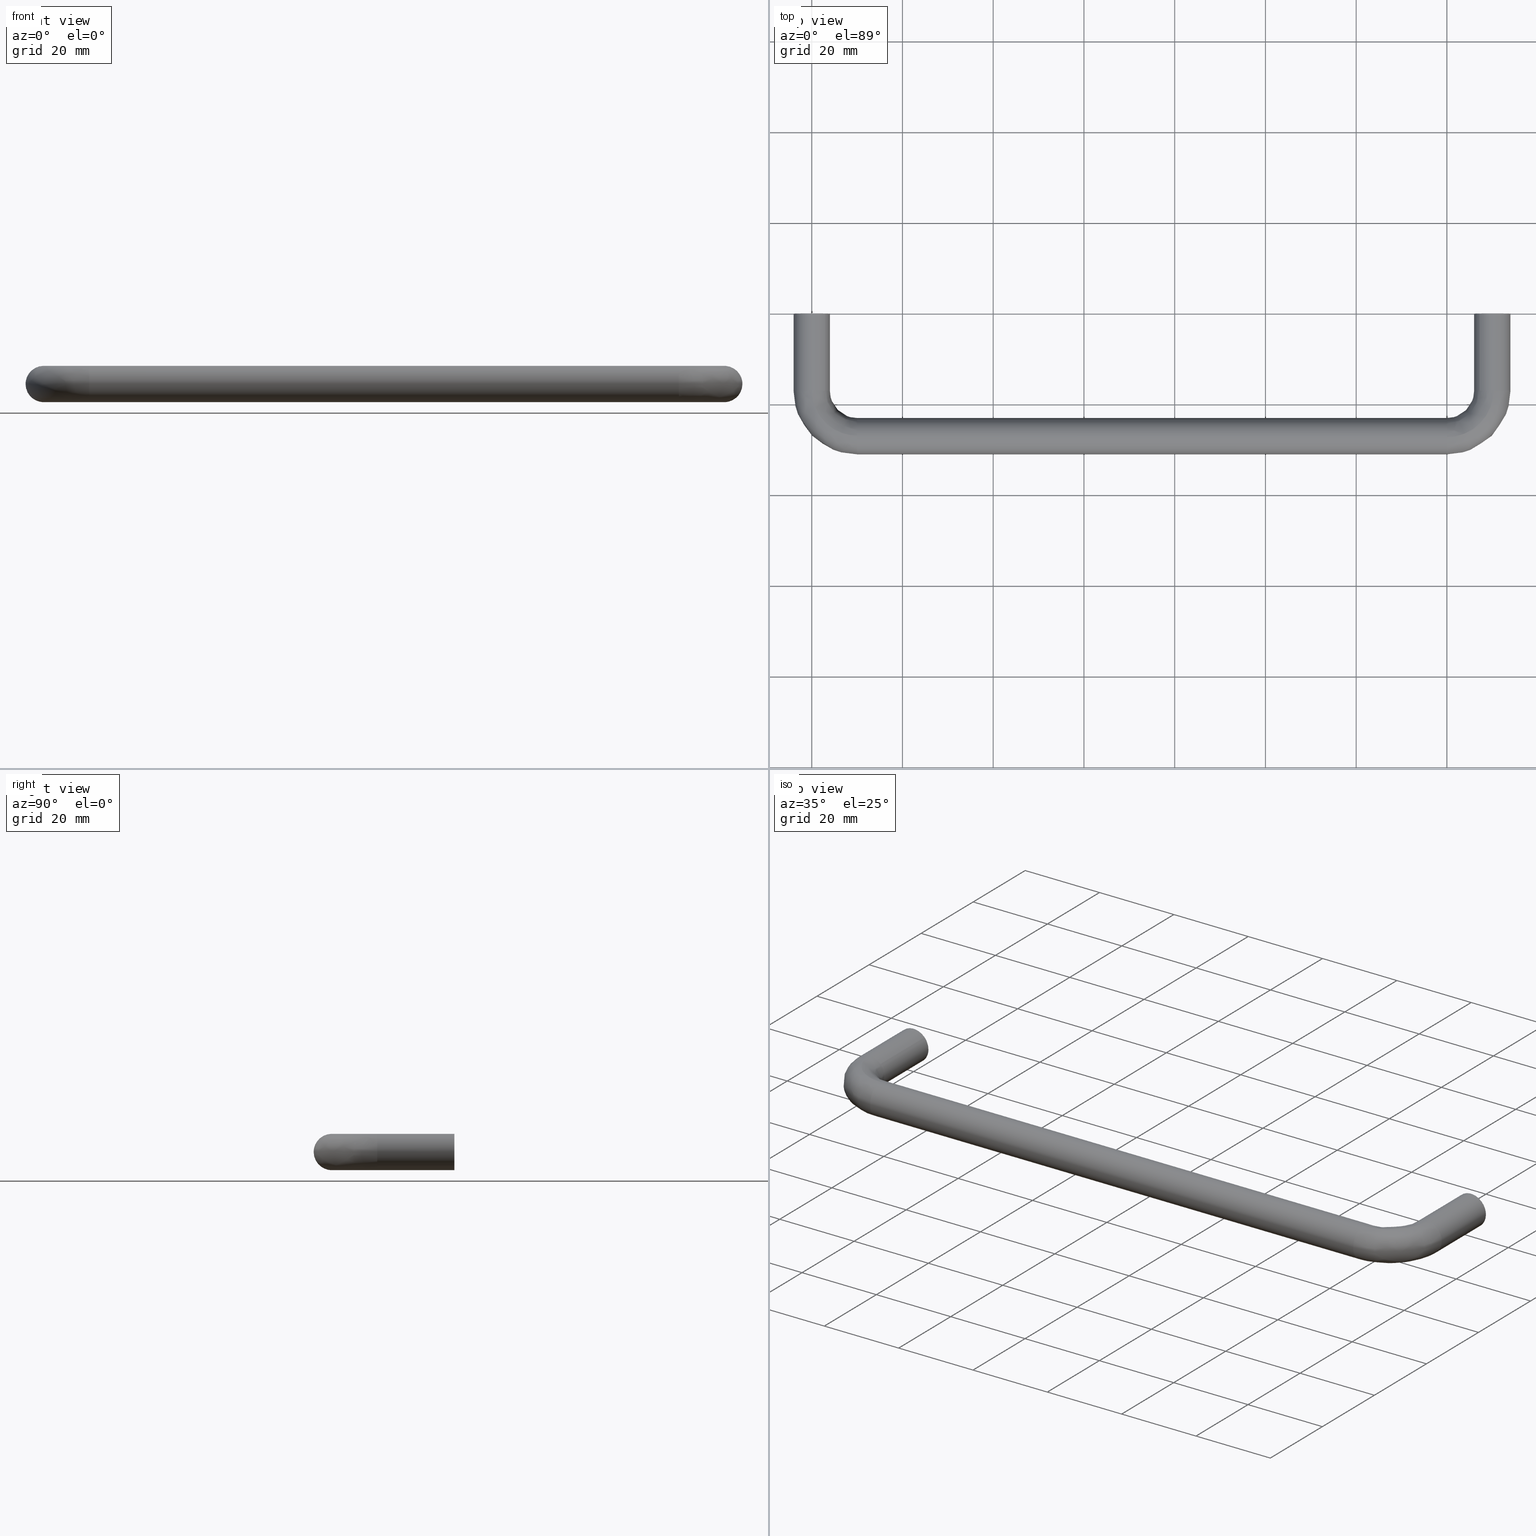
[diagram: canonical four-view strip — front | top / right | iso, engineering-drawing reading convention]
A machine part, canonical four-view strip (front | top / right | iso — engineering-drawing reading convention). The complete STEP part file that produces these views, byte-faithful:
ISO-10303-21;
HEADER;
/****************************************************************
 * Generated by software with PDE/Lib inside                    *
 * PDElib Version 4.4.1-0003, patched  Thursday August 19 11:58 *
 * International Technegroup Inc. (www.iti-oh.com)              *
 ****************************************************************/
FILE_DESCRIPTION((''),'2;1');
FILE_NAME('','2005-10-07T11:57:56',(''),(''),'','CADfix','');
FILE_SCHEMA(('AUTOMOTIVE_DESIGN'));
ENDSEC;
DATA;
#5=APPLICATION_CONTEXT('automotive design');
#6=APPLICATION_PROTOCOL_DEFINITION('Draft International Standard','automotive_design',1998,#5);
#7=PRODUCT_CONTEXT('None',#5,'mechanical');
#8=PRODUCT('pull','','None',(#7));
#9=PRODUCT_RELATED_PRODUCT_CATEGORY('part','description',(#8));
#10=PRODUCT_DEFINITION_FORMATION('None','None',#8);
#11=PRODUCT_DEFINITION_CONTEXT('part definition',#5,'design');
#12=PRODUCT_DEFINITION('None','None',#10,#11);
#18=(NAMED_UNIT(*)PLANE_ANGLE_UNIT()SI_UNIT($,.RADIAN.));
#19=DIMENSIONAL_EXPONENTS(0.0,0.0,0.0,0.0,0.0,0.0,0.0);
#20=PLANE_ANGLE_MEASURE_WITH_UNIT(PLANE_ANGLE_MEASURE(0.017453292500000),#18);
#24=(CONVERSION_BASED_UNIT('DEGREE',#20)NAMED_UNIT(#19)PLANE_ANGLE_UNIT());
#28=(NAMED_UNIT(*)SI_UNIT($,.STERADIAN.)SOLID_ANGLE_UNIT());
#32=(LENGTH_UNIT()NAMED_UNIT(*)SI_UNIT(.MILLI.,.METRE.));
#34=UNCERTAINTY_MEASURE_WITH_UNIT(LENGTH_MEASURE(0.001000000000000),#32,'DISTANCE_ACCURACY_VALUE','');
#36=(GEOMETRIC_REPRESENTATION_CONTEXT(3)GLOBAL_UNCERTAINTY_ASSIGNED_CONTEXT((#34))GLOBAL_UNIT_ASSIGNED_CONTEXT((#24,#28,#32))REPRESENTATION_CONTEXT('None','None'));
#37=AXIS2_PLACEMENT_3D('',#38,#39,#40);
#38=CARTESIAN_POINT('',(0.0,0.0,0.0));
#39=DIRECTION('',(0.0,0.0,1.0));
#40=DIRECTION('',(1.0,0.0,0.0));
#41=ADVANCED_BREP_SHAPE_REPRESENTATION('',(#37,#1359),#36);
#42=PRODUCT_DEFINITION_SHAPE('','',#12);
#43=SHAPE_DEFINITION_REPRESENTATION(#42,#41);
#44=CARTESIAN_POINT('',(-2.492293334332819,-13.324999999999999,0.196147739319614));
#45=CARTESIAN_POINT('',(-2.296145595013206,-13.325000000000001,2.688441073652433));
#46=CARTESIAN_POINT('',(0.196147739319614,-13.324999999999999,2.492293334332819));
#47=CARTESIAN_POINT('',(2.688441073652433,-13.325000000000001,2.296145595013206));
#48=CARTESIAN_POINT('',(2.492293334332819,-13.324999999999999,-0.196147739319614));
#49=CARTESIAN_POINT('',(-2.492293334332819,0.333124999999999,0.196147739319614));
#50=CARTESIAN_POINT('',(-2.296145595013206,0.333124999999999,2.688441073652433));
#51=CARTESIAN_POINT('',(0.196147739319614,0.333124999999999,2.492293334332819));
#52=CARTESIAN_POINT('',(2.688441073652433,0.333124999999999,2.296145595013206));
#53=CARTESIAN_POINT('',(2.492293334332819,0.333124999999999,-0.196147739319614));
#61=(BOUNDED_SURFACE()B_SPLINE_SURFACE(2,1,((#44,#49),(#45,#50),(#46,#51),(#47,#52),(#48,#53)),.UNSPECIFIED.,.F.,.F.,.U.)B_SPLINE_SURFACE_WITH_KNOTS((3,2,3),(2,2),(0.0,4.142135623730949,8.284271247461899),(0.0,13.658125000000000),.UNSPECIFIED.)GEOMETRIC_REPRESENTATION_ITEM()RATIONAL_B_SPLINE_SURFACE(((1.0,1.0),(0.707106781186548,0.707106781186548),(1.0,1.0),(0.707106781186548,0.707106781186548),(1.0,1.0)))REPRESENTATION_ITEM('')SURFACE());
#62=CARTESIAN_POINT('',(0.0,-13.0,2.500000000000000));
#63=VERTEX_POINT('',#62);
#64=CARTESIAN_POINT('',(-2.492293334298638,-13.0,0.196147739753929));
#65=VERTEX_POINT('',#64);
#66=CARTESIAN_POINT('',(0.0,-13.0,2.500000000000000));
#67=CARTESIAN_POINT('',(-2.310976228337587,-13.000000000000002,2.500000000000000));
#68=CARTESIAN_POINT('',(-2.492293334298638,-13.000000000000004,0.196147739753929));
#76=(BOUNDED_CURVE()B_SPLINE_CURVE(2,(#66,#67,#68),.UNSPECIFIED.,.F.,.U.)B_SPLINE_CURVE_WITH_KNOTS((3,3),(0.0,0.236331300573021),.UNSPECIFIED.)CURVE()GEOMETRIC_REPRESENTATION_ITEM()RATIONAL_B_SPLINE_CURVE((1.0,0.723120658675194,0.969723356047130))REPRESENTATION_ITEM(''));
#77=EDGE_CURVE('',#63,#65,#76,.T.);
#78=ORIENTED_EDGE('',*,*,#77,.T.);
#79=CARTESIAN_POINT('',(-2.492293334298638,8.326673E-017,0.196147739753929));
#80=VERTEX_POINT('',#79);
#81=CARTESIAN_POINT('',(-2.492293334298638,-13.0,0.196147739753929));
#82=CARTESIAN_POINT('',(-2.492293334298638,8.326673E-017,0.196147739753929));
#83=QUASI_UNIFORM_CURVE('',1,(#81,#82),.UNSPECIFIED.,.F.,.U.);
#84=EDGE_CURVE('',#65,#80,#83,.T.);
#85=ORIENTED_EDGE('',*,*,#84,.T.);
#86=CARTESIAN_POINT('',(0.0,0.0,2.500000000000000));
#87=VERTEX_POINT('',#86);
#88=CARTESIAN_POINT('',(0.0,0.0,2.500000000000000));
#89=CARTESIAN_POINT('',(-2.310976228337587,0.0,2.500000000000000));
#90=CARTESIAN_POINT('',(-2.492293334298638,8.326673E-017,0.196147739753929));
#98=(BOUNDED_CURVE()B_SPLINE_CURVE(2,(#88,#89,#90),.UNSPECIFIED.,.F.,.U.)B_SPLINE_CURVE_WITH_KNOTS((3,3),(0.0,0.236331300573021),.UNSPECIFIED.)CURVE()GEOMETRIC_REPRESENTATION_ITEM()RATIONAL_B_SPLINE_CURVE((1.0,0.723120658675194,0.969723356047130))REPRESENTATION_ITEM(''));
#99=EDGE_CURVE('',#87,#80,#98,.T.);
#100=ORIENTED_EDGE('',*,*,#99,.F.);
#101=CARTESIAN_POINT('',(2.492293334298638,8.326673E-017,-0.196147739753929));
#102=VERTEX_POINT('',#101);
#103=CARTESIAN_POINT('',(2.492293334298637,8.326673E-017,-0.196147739753929));
#104=CARTESIAN_POINT('',(2.499999999999999,0.0,-0.098225267955506));
#105=CARTESIAN_POINT('',(2.500000000000000,0.0,0.0));
#106=CARTESIAN_POINT('',(2.500000000000000,0.0,2.500000000000000));
#107=CARTESIAN_POINT('',(0.0,0.0,2.500000000000000));
#115=(BOUNDED_CURVE()B_SPLINE_CURVE(2,(#103,#104,#105,#106,#107),.UNSPECIFIED.,.F.,.U.)B_SPLINE_CURVE_WITH_KNOTS((3,2,3),(0.736331300573021,0.750000000000000,1.0),.UNSPECIFIED.)CURVE()GEOMETRIC_REPRESENTATION_ITEM()RATIONAL_B_SPLINE_CURVE((0.969723356047130,0.983986122511354,1.0,0.707106781186548,1.0))REPRESENTATION_ITEM(''));
#116=EDGE_CURVE('',#102,#87,#115,.T.);
#117=ORIENTED_EDGE('',*,*,#116,.F.);
#118=CARTESIAN_POINT('',(2.492293334298638,-13.0,-0.196147739753929));
#119=VERTEX_POINT('',#118);
#120=CARTESIAN_POINT('',(2.492293334298638,-13.0,-0.196147739753929));
#121=CARTESIAN_POINT('',(2.492293334298638,8.326673E-017,-0.196147739753929));
#122=QUASI_UNIFORM_CURVE('',1,(#120,#121),.UNSPECIFIED.,.F.,.U.);
#123=EDGE_CURVE('',#119,#102,#122,.T.);
#124=ORIENTED_EDGE('',*,*,#123,.F.);
#125=CARTESIAN_POINT('',(2.492293334298637,-13.0,-0.196147739753929));
#126=CARTESIAN_POINT('',(2.499999999999999,-13.0,-0.098225267955506));
#127=CARTESIAN_POINT('',(2.500000000000000,-13.0,0.0));
#128=CARTESIAN_POINT('',(2.500000000000000,-13.000000000000002,2.500000000000000));
#129=CARTESIAN_POINT('',(0.0,-13.0,2.500000000000000));
#137=(BOUNDED_CURVE()B_SPLINE_CURVE(2,(#125,#126,#127,#128,#129),.UNSPECIFIED.,.F.,.U.)B_SPLINE_CURVE_WITH_KNOTS((3,2,3),(0.736331300573021,0.750000000000000,1.0),.UNSPECIFIED.)CURVE()GEOMETRIC_REPRESENTATION_ITEM()RATIONAL_B_SPLINE_CURVE((0.969723356047130,0.983986122511354,1.0,0.707106781186548,1.0))REPRESENTATION_ITEM(''));
#138=EDGE_CURVE('',#119,#63,#137,.T.);
#139=ORIENTED_EDGE('',*,*,#138,.T.);
#140=EDGE_LOOP('',(#78,#85,#100,#117,#124,#139));
#141=FACE_OUTER_BOUND('',#140,.T.);
#142=ADVANCED_FACE('',(#141),#61,.F.);
#143=CARTESIAN_POINT('',(2.492293334332819,-13.324999999999999,-0.196147739319614));
#144=CARTESIAN_POINT('',(2.296145595013206,-13.325000000000001,-2.688441073652433));
#145=CARTESIAN_POINT('',(-0.196147739319614,-13.324999999999999,-2.492293334332819));
#146=CARTESIAN_POINT('',(-2.688441073652433,-13.325000000000001,-2.296145595013206));
#147=CARTESIAN_POINT('',(-2.492293334332819,-13.324999999999999,0.196147739319614));
#148=CARTESIAN_POINT('',(2.492293334332819,0.333124999999999,-0.196147739319614));
#149=CARTESIAN_POINT('',(2.296145595013206,0.333124999999999,-2.688441073652433));
#150=CARTESIAN_POINT('',(-0.196147739319614,0.333124999999999,-2.492293334332819));
#151=CARTESIAN_POINT('',(-2.688441073652433,0.333124999999999,-2.296145595013206));
#152=CARTESIAN_POINT('',(-2.492293334332819,0.333124999999999,0.196147739319614));
#160=(BOUNDED_SURFACE()B_SPLINE_SURFACE(2,1,((#143,#148),(#144,#149),(#145,#150),(#146,#151),(#147,#152)),.UNSPECIFIED.,.F.,.F.,.U.)B_SPLINE_SURFACE_WITH_KNOTS((3,2,3),(2,2),(0.0,4.142135623730949,8.284271247461899),(0.0,13.658125000000000),.UNSPECIFIED.)GEOMETRIC_REPRESENTATION_ITEM()RATIONAL_B_SPLINE_SURFACE(((1.0,1.0),(0.707106781186548,0.707106781186548),(1.0,1.0),(0.707106781186548,0.707106781186548),(1.0,1.0)))REPRESENTATION_ITEM('')SURFACE());
#161=CARTESIAN_POINT('',(0.0,-13.0,-2.500000000000000));
#162=VERTEX_POINT('',#161);
#163=CARTESIAN_POINT('',(-2.492293334298637,-13.0,0.196147739753929));
#164=CARTESIAN_POINT('',(-2.499999999999999,-13.0,0.098225267955506));
#165=CARTESIAN_POINT('',(-2.500000000000000,-13.0,0.0));
#166=CARTESIAN_POINT('',(-2.500000000000000,-13.000000000000002,-2.500000000000000));
#167=CARTESIAN_POINT('',(0.0,-13.0,-2.500000000000000));
#175=(BOUNDED_CURVE()B_SPLINE_CURVE(2,(#163,#164,#165,#166,#167),.UNSPECIFIED.,.F.,.U.)B_SPLINE_CURVE_WITH_KNOTS((3,2,3),(0.236331300573021,0.250000000000000,0.500000000000000),.UNSPECIFIED.)CURVE()GEOMETRIC_REPRESENTATION_ITEM()RATIONAL_B_SPLINE_CURVE((0.969723356047130,0.983986122511354,1.0,0.707106781186548,1.0))REPRESENTATION_ITEM(''));
#176=EDGE_CURVE('',#65,#162,#175,.T.);
#177=ORIENTED_EDGE('',*,*,#176,.T.);
#178=CARTESIAN_POINT('',(0.0,-13.0,-2.500000000000000));
#179=CARTESIAN_POINT('',(2.310976228337585,-13.0,-2.500000000000000));
#180=CARTESIAN_POINT('',(2.492293334298638,-12.999999999999998,-0.196147739753929));
#188=(BOUNDED_CURVE()B_SPLINE_CURVE(2,(#178,#179,#180),.UNSPECIFIED.,.F.,.U.)B_SPLINE_CURVE_WITH_KNOTS((3,3),(0.500000000000000,0.736331300573021),.UNSPECIFIED.)CURVE()GEOMETRIC_REPRESENTATION_ITEM()RATIONAL_B_SPLINE_CURVE((1.0,0.723120658675194,0.969723356047129))REPRESENTATION_ITEM(''));
#189=EDGE_CURVE('',#162,#119,#188,.T.);
#190=ORIENTED_EDGE('',*,*,#189,.T.);
#191=ORIENTED_EDGE('',*,*,#123,.T.);
#192=CARTESIAN_POINT('',(0.0,0.0,-2.500000000000000));
#193=VERTEX_POINT('',#192);
#194=CARTESIAN_POINT('',(0.0,0.0,-2.500000000000000));
#195=CARTESIAN_POINT('',(2.310976228337585,0.0,-2.500000000000000));
#196=CARTESIAN_POINT('',(2.492293334298638,8.326673E-017,-0.196147739753929));
#204=(BOUNDED_CURVE()B_SPLINE_CURVE(2,(#194,#195,#196),.UNSPECIFIED.,.F.,.U.)B_SPLINE_CURVE_WITH_KNOTS((3,3),(0.500000000000000,0.736331300573021),.UNSPECIFIED.)CURVE()GEOMETRIC_REPRESENTATION_ITEM()RATIONAL_B_SPLINE_CURVE((1.0,0.723120658675194,0.969723356047129))REPRESENTATION_ITEM(''));
#205=EDGE_CURVE('',#193,#102,#204,.T.);
#206=ORIENTED_EDGE('',*,*,#205,.F.);
#207=CARTESIAN_POINT('',(-2.492293334298637,8.326673E-017,0.196147739753929));
#208=CARTESIAN_POINT('',(-2.500000000000000,0.0,0.098225267955506));
#209=CARTESIAN_POINT('',(-2.500000000000000,0.0,0.0));
#210=CARTESIAN_POINT('',(-2.500000000000000,0.0,-2.500000000000000));
#211=CARTESIAN_POINT('',(0.0,0.0,-2.500000000000000));
#219=(BOUNDED_CURVE()B_SPLINE_CURVE(2,(#207,#208,#209,#210,#211),.UNSPECIFIED.,.F.,.U.)B_SPLINE_CURVE_WITH_KNOTS((3,2,3),(0.236331300573021,0.250000000000000,0.500000000000000),.UNSPECIFIED.)CURVE()GEOMETRIC_REPRESENTATION_ITEM()RATIONAL_B_SPLINE_CURVE((0.969723356047130,0.983986122511354,1.0,0.707106781186548,1.0))REPRESENTATION_ITEM(''));
#220=EDGE_CURVE('',#80,#193,#219,.T.);
#221=ORIENTED_EDGE('',*,*,#220,.F.);
#222=ORIENTED_EDGE('',*,*,#84,.F.);
#223=EDGE_LOOP('',(#177,#190,#191,#206,#221,#222));
#224=FACE_OUTER_BOUND('',#223,.T.);
#225=ADVANCED_FACE('',(#224),#160,.F.);
#226=CARTESIAN_POINT('',(147.507706665667200,-13.324999999999999,0.196147739319614));
#227=CARTESIAN_POINT('',(147.703854404986830,-13.325000000000001,2.688441073652433));
#228=CARTESIAN_POINT('',(150.196147739319600,-13.324999999999999,2.492293334332819));
#229=CARTESIAN_POINT('',(152.688441073652430,-13.325000000000001,2.296145595013206));
#230=CARTESIAN_POINT('',(152.492293334332800,-13.324999999999999,-0.196147739319614));
#231=CARTESIAN_POINT('',(147.507706665667200,0.333124999999999,0.196147739319614));
#232=CARTESIAN_POINT('',(147.703854404986830,0.333124999999999,2.688441073652433));
#233=CARTESIAN_POINT('',(150.196147739319600,0.333124999999999,2.492293334332819));
#234=CARTESIAN_POINT('',(152.688441073652430,0.333124999999999,2.296145595013206));
#235=CARTESIAN_POINT('',(152.492293334332800,0.333124999999999,-0.196147739319614));
#243=(BOUNDED_SURFACE()B_SPLINE_SURFACE(2,1,((#226,#231),(#227,#232),(#228,#233),(#229,#234),(#230,#235)),.UNSPECIFIED.,.F.,.F.,.U.)B_SPLINE_SURFACE_WITH_KNOTS((3,2,3),(2,2),(0.0,4.142135623730970,8.284271247461939),(0.0,13.658125000000000),.UNSPECIFIED.)GEOMETRIC_REPRESENTATION_ITEM()RATIONAL_B_SPLINE_SURFACE(((1.0,1.0),(0.707106781186548,0.707106781186548),(1.0,1.0),(0.707106781186548,0.707106781186548),(1.0,1.0)))REPRESENTATION_ITEM('')SURFACE());
#244=CARTESIAN_POINT('',(150.0,-13.0,2.500000000000000));
#245=VERTEX_POINT('',#244);
#246=CARTESIAN_POINT('',(147.507706665701310,-13.0,0.196147739753928));
#247=VERTEX_POINT('',#246);
#248=CARTESIAN_POINT('',(150.0,-13.0,2.500000000000000));
#249=CARTESIAN_POINT('',(147.689023771662360,-13.000000000000002,2.500000000000000));
#250=CARTESIAN_POINT('',(147.507706665701250,-13.000000000000005,0.196147739753929));
#258=(BOUNDED_CURVE()B_SPLINE_CURVE(2,(#248,#249,#250),.UNSPECIFIED.,.F.,.U.)B_SPLINE_CURVE_WITH_KNOTS((3,3),(0.0,0.236331300573021),.UNSPECIFIED.)CURVE()GEOMETRIC_REPRESENTATION_ITEM()RATIONAL_B_SPLINE_CURVE((1.0,0.723120658675193,0.969723356047130))REPRESENTATION_ITEM(''));
#259=EDGE_CURVE('',#245,#247,#258,.T.);
#260=ORIENTED_EDGE('',*,*,#259,.T.);
#261=CARTESIAN_POINT('',(147.507706665701390,8.326673E-017,0.196147739753929));
#262=VERTEX_POINT('',#261);
#263=CARTESIAN_POINT('',(147.507706665701310,-13.0,0.196147739753928));
#264=CARTESIAN_POINT('',(147.507706665701390,8.326673E-017,0.196147739753929));
#265=QUASI_UNIFORM_CURVE('',1,(#263,#264),.UNSPECIFIED.,.F.,.U.);
#266=EDGE_CURVE('',#247,#262,#265,.T.);
#267=ORIENTED_EDGE('',*,*,#266,.T.);
#268=CARTESIAN_POINT('',(150.0,0.0,2.500000000000000));
#269=VERTEX_POINT('',#268);
#270=CARTESIAN_POINT('',(150.0,0.0,2.500000000000000));
#271=CARTESIAN_POINT('',(147.689023771662450,0.0,2.500000000000000));
#272=CARTESIAN_POINT('',(147.507706665701360,8.326673E-017,0.196147739753929));
#280=(BOUNDED_CURVE()B_SPLINE_CURVE(2,(#270,#271,#272),.UNSPECIFIED.,.F.,.U.)B_SPLINE_CURVE_WITH_KNOTS((3,3),(0.0,0.236331300573021),.UNSPECIFIED.)CURVE()GEOMETRIC_REPRESENTATION_ITEM()RATIONAL_B_SPLINE_CURVE((1.0,0.723120658675194,0.969723356047130))REPRESENTATION_ITEM(''));
#281=EDGE_CURVE('',#269,#262,#280,.T.);
#282=ORIENTED_EDGE('',*,*,#281,.F.);
#283=CARTESIAN_POINT('',(152.492293334298610,8.326673E-017,-0.196147739753930));
#284=VERTEX_POINT('',#283);
#285=CARTESIAN_POINT('',(152.492293334298610,8.326673E-017,-0.196147739753930));
#286=CARTESIAN_POINT('',(152.499999999999970,0.0,-0.098225267955507));
#287=CARTESIAN_POINT('',(152.500000000000000,0.0,0.0));
#288=CARTESIAN_POINT('',(152.500000000000000,0.0,2.500000000000000));
#289=CARTESIAN_POINT('',(150.0,0.0,2.500000000000000));
#297=(BOUNDED_CURVE()B_SPLINE_CURVE(2,(#285,#286,#287,#288,#289),.UNSPECIFIED.,.F.,.U.)B_SPLINE_CURVE_WITH_KNOTS((3,2,3),(0.736331300573021,0.750000000000000,1.0),.UNSPECIFIED.)CURVE()GEOMETRIC_REPRESENTATION_ITEM()RATIONAL_B_SPLINE_CURVE((0.969723356047130,0.983986122511354,1.0,0.707106781186548,1.0))REPRESENTATION_ITEM(''));
#298=EDGE_CURVE('',#284,#269,#297,.T.);
#299=ORIENTED_EDGE('',*,*,#298,.F.);
#300=CARTESIAN_POINT('',(152.492293334298690,-13.0,-0.196147739753929));
#301=VERTEX_POINT('',#300);
#302=CARTESIAN_POINT('',(152.492293334298690,-13.0,-0.196147739753929));
#303=CARTESIAN_POINT('',(152.492293334298610,8.326673E-017,-0.196147739753930));
#304=QUASI_UNIFORM_CURVE('',1,(#302,#303),.UNSPECIFIED.,.F.,.U.);
#305=EDGE_CURVE('',#301,#284,#304,.T.);
#306=ORIENTED_EDGE('',*,*,#305,.F.);
#307=CARTESIAN_POINT('',(152.492293334298690,-13.0,-0.196147739753929));
#308=CARTESIAN_POINT('',(152.499999999999940,-13.0,-0.098225267955506));
#309=CARTESIAN_POINT('',(152.500000000000000,-13.0,0.0));
#310=CARTESIAN_POINT('',(152.500000000000000,-13.000000000000002,2.500000000000000));
#311=CARTESIAN_POINT('',(150.0,-13.0,2.500000000000000));
#319=(BOUNDED_CURVE()B_SPLINE_CURVE(2,(#307,#308,#309,#310,#311),.UNSPECIFIED.,.F.,.U.)B_SPLINE_CURVE_WITH_KNOTS((3,2,3),(0.736331300573021,0.750000000000000,1.0),.UNSPECIFIED.)CURVE()GEOMETRIC_REPRESENTATION_ITEM()RATIONAL_B_SPLINE_CURVE((0.969723356047130,0.983986122511354,1.0,0.707106781186548,1.0))REPRESENTATION_ITEM(''));
#320=EDGE_CURVE('',#301,#245,#319,.T.);
#321=ORIENTED_EDGE('',*,*,#320,.T.);
#322=EDGE_LOOP('',(#260,#267,#282,#299,#306,#321));
#323=FACE_OUTER_BOUND('',#322,.T.);
#324=ADVANCED_FACE('',(#323),#243,.F.);
#325=CARTESIAN_POINT('',(152.492293334332800,-13.324999999999999,-0.196147739319614));
#326=CARTESIAN_POINT('',(152.296145595013200,-13.325000000000001,-2.688441073652433));
#327=CARTESIAN_POINT('',(149.803852260680400,-13.324999999999999,-2.492293334332819));
#328=CARTESIAN_POINT('',(147.311558926347630,-13.325000000000001,-2.296145595013206));
#329=CARTESIAN_POINT('',(147.507706665667200,-13.324999999999999,0.196147739319614));
#330=CARTESIAN_POINT('',(152.492293334332800,0.333124999999999,-0.196147739319614));
#331=CARTESIAN_POINT('',(152.296145595013200,0.333124999999999,-2.688441073652433));
#332=CARTESIAN_POINT('',(149.803852260680400,0.333124999999999,-2.492293334332819));
#333=CARTESIAN_POINT('',(147.311558926347630,0.333124999999999,-2.296145595013206));
#334=CARTESIAN_POINT('',(147.507706665667200,0.333124999999999,0.196147739319614));
#342=(BOUNDED_SURFACE()B_SPLINE_SURFACE(2,1,((#325,#330),(#326,#331),(#327,#332),(#328,#333),(#329,#334)),.UNSPECIFIED.,.F.,.F.,.U.)B_SPLINE_SURFACE_WITH_KNOTS((3,2,3),(2,2),(0.0,4.142135623730995,8.284271247461989),(0.0,13.658125000000000),.UNSPECIFIED.)GEOMETRIC_REPRESENTATION_ITEM()RATIONAL_B_SPLINE_SURFACE(((1.0,1.0),(0.707106781186548,0.707106781186548),(1.0,1.0),(0.707106781186548,0.707106781186548),(1.0,1.0)))REPRESENTATION_ITEM('')SURFACE());
#343=CARTESIAN_POINT('',(150.0,-13.0,-2.500000000000000));
#344=VERTEX_POINT('',#343);
#345=CARTESIAN_POINT('',(147.507706665701310,-12.999999999999998,0.196147739753929));
#346=CARTESIAN_POINT('',(147.499999999999970,-12.999999999999998,0.098225267955505));
#347=CARTESIAN_POINT('',(147.500000000000000,-13.0,0.0));
#348=CARTESIAN_POINT('',(147.500000000000060,-13.000000000000002,-2.500000000000000));
#349=CARTESIAN_POINT('',(150.0,-13.0,-2.500000000000000));
#357=(BOUNDED_CURVE()B_SPLINE_CURVE(2,(#345,#346,#347,#348,#349),.UNSPECIFIED.,.F.,.U.)B_SPLINE_CURVE_WITH_KNOTS((3,2,3),(0.236331300573021,0.250000000000000,0.500000000000000),.UNSPECIFIED.)CURVE()GEOMETRIC_REPRESENTATION_ITEM()RATIONAL_B_SPLINE_CURVE((0.969723356047130,0.983986122511354,1.0,0.707106781186548,1.0))REPRESENTATION_ITEM(''));
#358=EDGE_CURVE('',#247,#344,#357,.T.);
#359=ORIENTED_EDGE('',*,*,#358,.T.);
#360=CARTESIAN_POINT('',(150.0,-13.0,-2.500000000000000));
#361=CARTESIAN_POINT('',(152.310976228337580,-13.0,-2.500000000000000));
#362=CARTESIAN_POINT('',(152.492293334298670,-12.999999999999998,-0.196147739753929));
#370=(BOUNDED_CURVE()B_SPLINE_CURVE(2,(#360,#361,#362),.UNSPECIFIED.,.F.,.U.)B_SPLINE_CURVE_WITH_KNOTS((3,3),(0.500000000000000,0.736331300573021),.UNSPECIFIED.)CURVE()GEOMETRIC_REPRESENTATION_ITEM()RATIONAL_B_SPLINE_CURVE((1.0,0.723120658675194,0.969723356047129))REPRESENTATION_ITEM(''));
#371=EDGE_CURVE('',#344,#301,#370,.T.);
#372=ORIENTED_EDGE('',*,*,#371,.T.);
#373=ORIENTED_EDGE('',*,*,#305,.T.);
#374=CARTESIAN_POINT('',(150.0,0.0,-2.500000000000000));
#375=VERTEX_POINT('',#374);
#376=CARTESIAN_POINT('',(150.0,0.0,-2.500000000000000));
#377=CARTESIAN_POINT('',(152.310976228337580,0.0,-2.500000000000000));
#378=CARTESIAN_POINT('',(152.492293334298670,8.326673E-017,-0.196147739753930));
#386=(BOUNDED_CURVE()B_SPLINE_CURVE(2,(#376,#377,#378),.UNSPECIFIED.,.F.,.U.)B_SPLINE_CURVE_WITH_KNOTS((3,3),(0.500000000000000,0.736331300573021),.UNSPECIFIED.)CURVE()GEOMETRIC_REPRESENTATION_ITEM()RATIONAL_B_SPLINE_CURVE((1.0,0.723120658675194,0.969723356047129))REPRESENTATION_ITEM(''));
#387=EDGE_CURVE('',#375,#284,#386,.T.);
#388=ORIENTED_EDGE('',*,*,#387,.F.);
#389=CARTESIAN_POINT('',(147.507706665701330,8.326673E-017,0.196147739753929));
#390=CARTESIAN_POINT('',(147.500000000000000,0.0,0.098225267955506));
#391=CARTESIAN_POINT('',(147.500000000000000,0.0,0.0));
#392=CARTESIAN_POINT('',(147.500000000000060,0.0,-2.500000000000000));
#393=CARTESIAN_POINT('',(150.0,0.0,-2.500000000000000));
#401=(BOUNDED_CURVE()B_SPLINE_CURVE(2,(#389,#390,#391,#392,#393),.UNSPECIFIED.,.F.,.U.)B_SPLINE_CURVE_WITH_KNOTS((3,2,3),(0.236331300573021,0.250000000000000,0.500000000000000),.UNSPECIFIED.)CURVE()GEOMETRIC_REPRESENTATION_ITEM()RATIONAL_B_SPLINE_CURVE((0.969723356047130,0.983986122511354,1.0,0.707106781186548,1.0))REPRESENTATION_ITEM(''));
#402=EDGE_CURVE('',#262,#375,#401,.T.);
#403=ORIENTED_EDGE('',*,*,#402,.F.);
#404=ORIENTED_EDGE('',*,*,#266,.F.);
#405=EDGE_LOOP('',(#359,#372,#373,#388,#403,#404));
#406=FACE_OUTER_BOUND('',#405,.T.);
#407=ADVANCED_FACE('',(#406),#342,.F.);
#408=CARTESIAN_POINT('',(152.635878288639760,-17.425000006093512,-3.008678388840788));
#409=CARTESIAN_POINT('',(149.794622502582800,-17.425000006093509,-5.497879117877503));
#410=CARTESIAN_POINT('',(147.146998203383300,-17.425000006093509,-2.803637057199403));
#411=CARTESIAN_POINT('',(144.343361146183920,-17.425000006093505,0.049364739417323));
#412=CARTESIAN_POINT('',(147.196362942800590,-17.425000006093509,2.853001796616725));
#413=CARTESIAN_POINT('',(152.635878288639760,0.435625000152356,-3.008678388840788));
#414=CARTESIAN_POINT('',(149.794622502582800,0.435625000152356,-5.497879117877503));
#415=CARTESIAN_POINT('',(147.146998203383300,0.435625000152356,-2.803637057199403));
#416=CARTESIAN_POINT('',(144.343361146183920,0.435625000152357,0.049364739417323));
#417=CARTESIAN_POINT('',(147.196362942800590,0.435625000152357,2.853001796616725));
#425=(BOUNDED_SURFACE()B_SPLINE_SURFACE(2,1,((#408,#413),(#409,#414),(#410,#415),(#411,#416),(#412,#417)),.UNSPECIFIED.,.F.,.F.,.U.)B_SPLINE_SURFACE_WITH_KNOTS((3,2,3),(2,2),(0.0,6.362320318050738,12.989737316020260),(0.0,17.860625006245868),.UNSPECIFIED.)GEOMETRIC_REPRESENTATION_ITEM()RATIONAL_B_SPLINE_SURFACE(((0.977505800795127,0.977505800795127),(0.718822509939086,0.718822509939086),(1.0,1.0),(0.707106781186548,0.707106781186548),(1.0,1.0)))REPRESENTATION_ITEM('')SURFACE());
#426=CARTESIAN_POINT('',(152.635878288640300,-17.0,-3.008678388840304));
#427=VERTEX_POINT('',#426);
#428=CARTESIAN_POINT('',(149.949735840425290,-16.999999999984301,-3.999684176814744));
#429=VERTEX_POINT('',#428);
#430=CARTESIAN_POINT('',(152.635878288640300,-16.999999999999993,-3.008678388840303));
#431=CARTESIAN_POINT('',(151.504351115804180,-17.0,-4.000000000000000));
#432=CARTESIAN_POINT('',(150.0,-17.0,-4.0));
#433=CARTESIAN_POINT('',(149.974866927991090,-17.0,-4.000000000000000));
#434=CARTESIAN_POINT('',(149.949735840425230,-16.999999999984297,-3.999684176814745));
#442=(BOUNDED_CURVE()B_SPLINE_CURVE(2,(#430,#431,#432,#433,#434),.UNSPECIFIED.,.F.,.U.)B_SPLINE_CURVE_WITH_KNOTS((3,2,3),(0.134954720076216,0.250000000000000,0.252215704081906),.UNSPECIFIED.)CURVE()GEOMETRIC_REPRESENTATION_ITEM()RATIONAL_B_SPLINE_CURVE((0.854482180312937,0.865216070615312,1.0,0.997404141198050,0.994854295635648))REPRESENTATION_ITEM(''));
#443=EDGE_CURVE('',#427,#429,#442,.T.);
#444=ORIENTED_EDGE('',*,*,#443,.T.);
#445=CARTESIAN_POINT('',(146.0,-17.0,0.0));
#446=VERTEX_POINT('',#445);
#447=CARTESIAN_POINT('',(149.949735840425260,-16.999999999984301,-3.999684176814744));
#448=CARTESIAN_POINT('',(145.999999999999940,-17.0,-3.950047719547630));
#449=CARTESIAN_POINT('',(146.0,-17.0,0.0));
#457=(BOUNDED_CURVE()B_SPLINE_CURVE(2,(#447,#448,#449),.UNSPECIFIED.,.F.,.U.)B_SPLINE_CURVE_WITH_KNOTS((3,3),(0.252215704081906,0.500000000000000),.UNSPECIFIED.)CURVE()GEOMETRIC_REPRESENTATION_ITEM()RATIONAL_B_SPLINE_CURVE((0.994854295635648,0.709702639988498,1.0))REPRESENTATION_ITEM(''));
#458=EDGE_CURVE('',#429,#446,#457,.T.);
#459=ORIENTED_EDGE('',*,*,#458,.T.);
#460=CARTESIAN_POINT('',(147.196363281784100,-17.000000000000021,2.853002129734826));
#461=VERTEX_POINT('',#460);
#462=CARTESIAN_POINT('',(146.0,-17.0,0.0));
#463=CARTESIAN_POINT('',(146.000000000000060,-17.000000000000007,1.677339765870804));
#464=CARTESIAN_POINT('',(147.196363281784130,-17.000000000000025,2.853002129734826));
#472=(BOUNDED_CURVE()B_SPLINE_CURVE(2,(#462,#463,#464),.UNSPECIFIED.,.F.,.U.)B_SPLINE_CURVE_WITH_KNOTS((3,3),(0.500000000000000,0.626316793447803),.UNSPECIFIED.)CURVE()GEOMETRIC_REPRESENTATION_ITEM()RATIONAL_B_SPLINE_CURVE((1.0,0.852010671107516,0.853569642136559))REPRESENTATION_ITEM(''));
#473=EDGE_CURVE('',#446,#461,#472,.T.);
#474=ORIENTED_EDGE('',*,*,#473,.T.);
#475=CARTESIAN_POINT('',(147.196363277699700,1.766642E-014,2.853002125721120));
#476=VERTEX_POINT('',#475);
#477=CARTESIAN_POINT('',(147.196363281784100,-17.000000000000021,2.853002129734826));
#478=CARTESIAN_POINT('',(147.196363277699700,1.766642E-014,2.853002125721120));
#479=QUASI_UNIFORM_CURVE('',1,(#477,#478),.UNSPECIFIED.,.F.,.U.);
#480=EDGE_CURVE('',#461,#476,#479,.T.);
#481=ORIENTED_EDGE('',*,*,#480,.T.);
#482=CARTESIAN_POINT('',(146.0,1.734723E-014,0.0));
#483=VERTEX_POINT('',#482);
#484=CARTESIAN_POINT('',(146.0,1.734723E-014,0.0));
#485=CARTESIAN_POINT('',(146.0,1.734723E-014,1.677339759137421));
#486=CARTESIAN_POINT('',(147.196363277699760,1.766642E-014,2.853002125721121));
#494=(BOUNDED_CURVE()B_SPLINE_CURVE(2,(#484,#485,#486),.UNSPECIFIED.,.F.,.U.)B_SPLINE_CURVE_WITH_KNOTS((3,3),(0.500000000000000,0.626316793015768),.UNSPECIFIED.)CURVE()GEOMETRIC_REPRESENTATION_ITEM()RATIONAL_B_SPLINE_CURVE((1.0,0.852010671613676,0.853569642125895))REPRESENTATION_ITEM(''));
#495=EDGE_CURVE('',#483,#476,#494,.T.);
#496=ORIENTED_EDGE('',*,*,#495,.F.);
#497=CARTESIAN_POINT('',(152.635874270543410,1.639686E-014,-3.008681909052375));
#498=VERTEX_POINT('',#497);
#499=CARTESIAN_POINT('',(152.635874270543350,1.639686E-014,-3.008681909052375));
#500=CARTESIAN_POINT('',(151.504348067011160,1.734723E-014,-4.0));
#501=CARTESIAN_POINT('',(150.0,1.734723E-014,-4.0));
#502=CARTESIAN_POINT('',(146.000000000000090,1.734723E-014,-4.000000000000000));
#503=CARTESIAN_POINT('',(146.0,1.734723E-014,0.0));
#511=(BOUNDED_CURVE()B_SPLINE_CURVE(2,(#499,#500,#501,#502,#503),.UNSPECIFIED.,.F.,.U.)B_SPLINE_CURVE_WITH_KNOTS((3,2,3),(0.134954921807022,0.250000000000000,0.500000000000000),.UNSPECIFIED.)CURVE()GEOMETRIC_REPRESENTATION_ITEM()RATIONAL_B_SPLINE_CURVE((0.854482217956868,0.865216306957654,1.0,0.707106781186548,1.0))REPRESENTATION_ITEM(''));
#512=EDGE_CURVE('',#498,#483,#511,.T.);
#513=ORIENTED_EDGE('',*,*,#512,.F.);
#514=CARTESIAN_POINT('',(152.635878288640300,-17.0,-3.008678388840304));
#515=CARTESIAN_POINT('',(152.635874270543410,1.639686E-014,-3.008681909052375));
#516=QUASI_UNIFORM_CURVE('',1,(#514,#515),.UNSPECIFIED.,.F.,.U.);
#517=EDGE_CURVE('',#427,#498,#516,.T.);
#518=ORIENTED_EDGE('',*,*,#517,.F.);
#519=EDGE_LOOP('',(#444,#459,#474,#481,#496,#513,#518));
#520=FACE_OUTER_BOUND('',#519,.T.);
#521=ADVANCED_FACE('',(#520),#425,.T.);
#522=CARTESIAN_POINT('',(147.196362942800590,-17.425000006093509,2.853001796616725));
#523=CARTESIAN_POINT('',(150.049364739417290,-17.425000006093505,5.656638853816128));
#524=CARTESIAN_POINT('',(152.853001796616700,-17.425000006093509,2.803637057199403));
#525=CARTESIAN_POINT('',(155.656638853816100,-17.425000006093505,-0.049364739417323));
#526=CARTESIAN_POINT('',(152.803637057199410,-17.425000006093509,-2.853001796616725));
#527=CARTESIAN_POINT('',(152.721985371512720,-17.425000006093516,-2.933240684669825));
#528=CARTESIAN_POINT('',(152.635878288639760,-17.425000006093512,-3.008678388840788));
#529=CARTESIAN_POINT('',(147.196362942800590,0.435625000152357,2.853001796616725));
#530=CARTESIAN_POINT('',(150.049364739417290,0.435625000152357,5.656638853816128));
#531=CARTESIAN_POINT('',(152.853001796616700,0.435625000152356,2.803637057199403));
#532=CARTESIAN_POINT('',(155.656638853816100,0.435625000152356,-0.049364739417323));
#533=CARTESIAN_POINT('',(152.803637057199410,0.435625000152356,-2.853001796616725));
#534=CARTESIAN_POINT('',(152.721985371512720,0.435625000152356,-2.933240684669825));
#535=CARTESIAN_POINT('',(152.635878288639760,0.435625000152356,-3.008678388840788));
#543=(BOUNDED_SURFACE()B_SPLINE_SURFACE(2,1,((#522,#529),(#523,#530),(#524,#531),(#525,#532),(#526,#533),(#527,#534),(#528,#535)),.UNSPECIFIED.,.F.,.F.,.U.)B_SPLINE_SURFACE_WITH_KNOTS((3,2,2,3),(2,2),(0.0,6.627416997969558,13.254833995939119,13.519930675857900),(0.0,17.860625006245868),.UNSPECIFIED.)GEOMETRIC_REPRESENTATION_ITEM()RATIONAL_B_SPLINE_SURFACE(((1.0,1.0),(0.707106781186548,0.707106781186548),(1.0,1.0),(0.707106781186548,0.707106781186548),(1.0,1.0),(0.988284271247462,0.988284271247462),(0.977505800795127,0.977505800795127)))REPRESENTATION_ITEM('')SURFACE());
#544=CARTESIAN_POINT('',(154.0,-17.0,0.0));
#545=VERTEX_POINT('',#544);
#546=CARTESIAN_POINT('',(154.0,-17.0,0.0));
#547=CARTESIAN_POINT('',(153.999999999999970,-17.000000000000004,-1.813582623412493));
#548=CARTESIAN_POINT('',(152.635878288640300,-16.999999999999993,-3.008678388840303));
#556=(BOUNDED_CURVE()B_SPLINE_CURVE(2,(#546,#547,#548),.UNSPECIFIED.,.F.,.U.)B_SPLINE_CURVE_WITH_KNOTS((3,3),(0.0,0.134954720076216),.UNSPECIFIED.)CURVE()GEOMETRIC_REPRESENTATION_ITEM()RATIONAL_B_SPLINE_CURVE((1.0,0.841890710571235,0.854482180312937))REPRESENTATION_ITEM(''));
#557=EDGE_CURVE('',#545,#427,#556,.T.);
#558=ORIENTED_EDGE('',*,*,#557,.T.);
#559=ORIENTED_EDGE('',*,*,#517,.T.);
#560=CARTESIAN_POINT('',(154.0,1.734723E-014,0.0));
#561=VERTEX_POINT('',#560);
#562=CARTESIAN_POINT('',(154.0,1.734723E-014,0.0));
#563=CARTESIAN_POINT('',(153.999999999999970,1.734723E-014,-1.813585843486828));
#564=CARTESIAN_POINT('',(152.635874270543350,1.639686E-014,-3.008681909052374));
#572=(BOUNDED_CURVE()B_SPLINE_CURVE(2,(#562,#563,#564),.UNSPECIFIED.,.F.,.U.)B_SPLINE_CURVE_WITH_KNOTS((3,3),(0.0,0.134954921807023),.UNSPECIFIED.)CURVE()GEOMETRIC_REPRESENTATION_ITEM()RATIONAL_B_SPLINE_CURVE((1.0,0.841890474228894,0.854482217956868))REPRESENTATION_ITEM(''));
#573=EDGE_CURVE('',#561,#498,#572,.T.);
#574=ORIENTED_EDGE('',*,*,#573,.F.);
#575=CARTESIAN_POINT('',(147.196363277699760,1.766642E-014,2.853002125721121));
#576=CARTESIAN_POINT('',(148.363557342416040,1.734723E-014,4.0));
#577=CARTESIAN_POINT('',(150.0,1.734723E-014,4.0));
#578=CARTESIAN_POINT('',(153.999999999999970,1.734723E-014,4.000000000000000));
#579=CARTESIAN_POINT('',(154.0,1.734723E-014,0.0));
#587=(BOUNDED_CURVE()B_SPLINE_CURVE(2,(#575,#576,#577,#578,#579),.UNSPECIFIED.,.F.,.U.)B_SPLINE_CURVE_WITH_KNOTS((3,2,3),(0.626316793015769,0.750000000000000,1.0),.UNSPECIFIED.)CURVE()GEOMETRIC_REPRESENTATION_ITEM()RATIONAL_B_SPLINE_CURVE((0.853569642125895,0.855096109572872,1.0,0.707106781186548,1.0))REPRESENTATION_ITEM(''));
#588=EDGE_CURVE('',#476,#561,#587,.T.);
#589=ORIENTED_EDGE('',*,*,#588,.F.);
#590=ORIENTED_EDGE('',*,*,#480,.F.);
#591=CARTESIAN_POINT('',(150.278933189532300,-17.000000005944891,3.990262682553283));
#592=VERTEX_POINT('',#591);
#593=CARTESIAN_POINT('',(147.196363281784100,-17.000000000000021,2.853002129734826));
#594=CARTESIAN_POINT('',(148.363557349100920,-16.999999999999993,4.0));
#595=CARTESIAN_POINT('',(150.0,-17.0,4.0));
#596=CARTESIAN_POINT('',(150.139636647400290,-17.0,4.0));
#597=CARTESIAN_POINT('',(150.278933189532300,-17.000000005944887,3.990262682553283));
#605=(BOUNDED_CURVE()B_SPLINE_CURVE(2,(#593,#594,#595,#596,#597),.UNSPECIFIED.,.F.,.U.)B_SPLINE_CURVE_WITH_KNOTS((3,2,3),(0.626316793447803,0.750000000000000,0.762166329259532),.UNSPECIFIED.)CURVE()GEOMETRIC_REPRESENTATION_ITEM()RATIONAL_B_SPLINE_CURVE((0.853569642136559,0.855096110079032,1.0,0.985746258648125,0.972879842979988))REPRESENTATION_ITEM(''));
#606=EDGE_CURVE('',#461,#592,#605,.T.);
#607=ORIENTED_EDGE('',*,*,#606,.T.);
#608=CARTESIAN_POINT('',(150.278933189532300,-17.000000005944891,3.990262682553283));
#609=CARTESIAN_POINT('',(154.0,-17.000000000000004,3.730147045658222));
#610=CARTESIAN_POINT('',(154.0,-17.0,0.0));
#618=(BOUNDED_CURVE()B_SPLINE_CURVE(2,(#608,#609,#610),.UNSPECIFIED.,.F.,.U.)B_SPLINE_CURVE_WITH_KNOTS((3,3),(0.762166329259533,1.0),.UNSPECIFIED.)CURVE()GEOMETRIC_REPRESENTATION_ITEM()RATIONAL_B_SPLINE_CURVE((0.972879842979987,0.721360522538423,1.0))REPRESENTATION_ITEM(''));
#619=EDGE_CURVE('',#592,#545,#618,.T.);
#620=ORIENTED_EDGE('',*,*,#619,.T.);
#621=EDGE_LOOP('',(#558,#559,#574,#589,#590,#607,#620));
#622=FACE_OUTER_BOUND('',#621,.T.);
#623=ADVANCED_FACE('',(#622),#543,.T.);
#624=CARTESIAN_POINT('',(6.749999998630599,-23.417578029456681,1.779396758727104));
#625=CARTESIAN_POINT('',(6.749999998630598,-23.684880976469948,2.317552145081927));
#626=CARTESIAN_POINT('',(6.749999998630598,-24.098502515950852,2.753418302775015));
#627=CARTESIAN_POINT('',(6.749999998630598,-26.851920818725862,5.654915786824165));
#628=CARTESIAN_POINT('',(6.749999998630598,-29.753418302775010,2.901497484049150));
#629=CARTESIAN_POINT('',(6.749999998630598,-32.654915786824162,0.148079181274134));
#630=CARTESIAN_POINT('',(6.749999998630598,-29.901497484049148,-2.753418302775015));
#631=CARTESIAN_POINT('',(6.749999998630598,-27.148079181274138,-5.654915786824165));
#632=CARTESIAN_POINT('',(6.749999998630598,-24.246581697224990,-2.901497484049150));
#633=CARTESIAN_POINT('',(143.331250010542190,-23.417578029456667,1.779396758727104));
#634=CARTESIAN_POINT('',(143.331250010542190,-23.684880976469938,2.317552145081927));
#635=CARTESIAN_POINT('',(143.331250010542190,-24.098502515950830,2.753418302775015));
#636=CARTESIAN_POINT('',(143.331250010542190,-26.851920818725848,5.654915786824165));
#637=CARTESIAN_POINT('',(143.331250010542190,-29.753418302775000,2.901497484049150));
#638=CARTESIAN_POINT('',(143.331250010542190,-32.654915786824148,0.148079181274134));
#639=CARTESIAN_POINT('',(143.331250010542190,-29.901497484049131,-2.753418302775015));
#640=CARTESIAN_POINT('',(143.331250010542190,-27.148079181274127,-5.654915786824165));
#641=CARTESIAN_POINT('',(143.331250010542190,-24.246581697224968,-2.901497484049150));
#649=(BOUNDED_SURFACE()B_SPLINE_SURFACE(2,1,((#624,#633),(#625,#634),(#626,#635),(#627,#636),(#628,#637),(#629,#638),(#630,#639),(#631,#640),(#632,#641)),.UNSPECIFIED.,.F.,.F.,.U.)B_SPLINE_SURFACE_WITH_KNOTS((3,2,2,2,3),(2,2),(0.0,1.325483399593904,7.952900397563423,14.580317395532941,21.207734393502459),(0.0,136.581250011911610),.UNSPECIFIED.)GEOMETRIC_REPRESENTATION_ITEM()RATIONAL_B_SPLINE_SURFACE(((0.906274169979695,0.906274169979695),(0.941421356237309,0.941421356237309),(1.0,1.0),(0.707106781186548,0.707106781186548),(1.0,1.0),(0.707106781186548,0.707106781186548),(1.0,1.0),(0.707106781186548,0.707106781186548),(1.0,1.0)))REPRESENTATION_ITEM('')SURFACE());
#650=CARTESIAN_POINT('',(140.0,-23.417578029477610,1.779396758769257));
#651=VERTEX_POINT('',#650);
#652=CARTESIAN_POINT('',(140.000000010251710,-27.278933189776939,3.990262682536179));
#653=VERTEX_POINT('',#652);
#654=CARTESIAN_POINT('',(140.000000000000030,-23.417578029477614,1.779396758769256));
#655=CARTESIAN_POINT('',(139.999999999999940,-24.520556473275803,4.0));
#656=CARTESIAN_POINT('',(140.0,-27.0,4.0));
#657=CARTESIAN_POINT('',(139.999999999999970,-27.139636647645887,4.0));
#658=CARTESIAN_POINT('',(140.000000010251650,-27.278933189776939,3.990262682536178));
#666=(BOUNDED_CURVE()B_SPLINE_CURVE(2,(#654,#655,#656,#657,#658),.UNSPECIFIED.,.F.,.U.)B_SPLINE_CURVE_WITH_KNOTS((3,2,3),(0.575619190626044,0.750000000000000,0.762166329280624),.UNSPECIFIED.)CURVE()GEOMETRIC_REPRESENTATION_ITEM()RATIONAL_B_SPLINE_CURVE((0.876408099965181,0.795700173772668,1.0,0.985746258623414,0.972879842935376))REPRESENTATION_ITEM(''));
#667=EDGE_CURVE('',#651,#653,#666,.T.);
#668=ORIENTED_EDGE('',*,*,#667,.F.);
#669=CARTESIAN_POINT('',(9.999999999885187,-23.417578029538809,1.779396758739924));
#670=VERTEX_POINT('',#669);
#671=CARTESIAN_POINT('',(9.999999999885187,-23.417578029538809,1.779396758739924));
#672=CARTESIAN_POINT('',(140.0,-23.417578029477610,1.779396758769257));
#673=QUASI_UNIFORM_CURVE('',1,(#671,#672),.UNSPECIFIED.,.F.,.U.);
#674=EDGE_CURVE('',#670,#651,#673,.T.);
#675=ORIENTED_EDGE('',*,*,#674,.F.);
#676=CARTESIAN_POINT('',(9.999999998914040,-26.949735839024481,3.999684176797141));
#677=VERTEX_POINT('',#676);
#678=CARTESIAN_POINT('',(9.999999999885187,-23.417578029538809,1.779396758739924));
#679=CARTESIAN_POINT('',(9.999999999586169,-24.505140260979935,3.968962863876078));
#680=CARTESIAN_POINT('',(9.999999998914040,-26.949735839024488,3.999684176797141));
#688=(BOUNDED_CURVE()B_SPLINE_CURVE(2,(#678,#679,#680),.UNSPECIFIED.,.F.,.U.)B_SPLINE_CURVE_WITH_KNOTS((3,3),(0.575619190623424,0.747784295794908),.UNSPECIFIED.)CURVE()GEOMETRIC_REPRESENTATION_ITEM()RATIONAL_B_SPLINE_CURVE((0.876408099967606,0.796725658695953,0.994854295352122))REPRESENTATION_ITEM(''));
#689=EDGE_CURVE('',#670,#677,#688,.T.);
#690=ORIENTED_EDGE('',*,*,#689,.T.);
#691=CARTESIAN_POINT('',(10.0,-31.0,0.0));
#692=VERTEX_POINT('',#691);
#693=CARTESIAN_POINT('',(9.999999998914040,-26.949735839024481,3.999684176797141));
#694=CARTESIAN_POINT('',(10.0,-26.974866926590163,4.0));
#695=CARTESIAN_POINT('',(10.0,-27.0,4.0));
#696=CARTESIAN_POINT('',(10.000000000000002,-31.000000000000007,4.000000000000000));
#697=CARTESIAN_POINT('',(10.0,-31.0,0.0));
#705=(BOUNDED_CURVE()B_SPLINE_CURVE(2,(#693,#694,#695,#696,#697),.UNSPECIFIED.,.F.,.U.)B_SPLINE_CURVE_WITH_KNOTS((3,2,3),(0.747784295794909,0.750000000000000,1.0),.UNSPECIFIED.)CURVE()GEOMETRIC_REPRESENTATION_ITEM()RATIONAL_B_SPLINE_CURVE((0.994854295352123,0.997404141053729,1.0,0.707106781186548,1.0))REPRESENTATION_ITEM(''));
#706=EDGE_CURVE('',#677,#692,#705,.T.);
#707=ORIENTED_EDGE('',*,*,#706,.T.);
#708=CARTESIAN_POINT('',(9.999999999857518,-27.278933006948471,-3.990262695316522));
#709=VERTEX_POINT('',#708);
#710=CARTESIAN_POINT('',(10.0,-31.0,0.0));
#711=CARTESIAN_POINT('',(10.0,-31.000000000000011,-3.730147387854432));
#712=CARTESIAN_POINT('',(9.999999999857518,-27.278933006948474,-3.990262695316523));
#720=(BOUNDED_CURVE()B_SPLINE_CURVE(2,(#710,#711,#712),.UNSPECIFIED.,.F.,.U.)B_SPLINE_CURVE_WITH_KNOTS((3,3),(0.0,0.237833686479388),.UNSPECIFIED.)CURVE()GEOMETRIC_REPRESENTATION_ITEM()RATIONAL_B_SPLINE_CURVE((1.0,0.721360504099130,0.972879876269158))REPRESENTATION_ITEM(''));
#721=EDGE_CURVE('',#692,#709,#720,.T.);
#722=ORIENTED_EDGE('',*,*,#721,.T.);
#723=CARTESIAN_POINT('',(10.0,-24.246582505429380,-2.901498251006061));
#724=VERTEX_POINT('',#723);
#725=CARTESIAN_POINT('',(9.999999999857518,-27.278933006948471,-3.990262695316522));
#726=CARTESIAN_POINT('',(10.000000000000002,-27.139636464147920,-4.0));
#727=CARTESIAN_POINT('',(10.0,-27.0,-4.0));
#728=CARTESIAN_POINT('',(9.999999999999998,-25.404162461871636,-4.0));
#729=CARTESIAN_POINT('',(10.0,-24.246582505429387,-2.901498251006061));
#737=(BOUNDED_CURVE()B_SPLINE_CURVE(2,(#725,#726,#727,#728,#729),.UNSPECIFIED.,.F.,.U.)B_SPLINE_CURVE_WITH_KNOTS((3,2,3),(0.237833686479388,0.250000000000000,0.371049484622336),.UNSPECIFIED.)CURVE()GEOMETRIC_REPRESENTATION_ITEM()RATIONAL_B_SPLINE_CURVE((0.972879876269158,0.985746277087417,1.0,0.858181707253018,0.853699664482370))REPRESENTATION_ITEM(''));
#738=EDGE_CURVE('',#709,#724,#737,.T.);
#739=ORIENTED_EDGE('',*,*,#738,.T.);
#740=CARTESIAN_POINT('',(140.000000000115700,-24.246582932973361,-2.901498656702296));
#741=VERTEX_POINT('',#740);
#742=CARTESIAN_POINT('',(10.0,-24.246582505429380,-2.901498251006061));
#743=CARTESIAN_POINT('',(140.000000000115700,-24.246582932973361,-2.901498656702296));
#744=QUASI_UNIFORM_CURVE('',1,(#742,#743),.UNSPECIFIED.,.F.,.U.);
#745=EDGE_CURVE('',#724,#741,#744,.T.);
#746=ORIENTED_EDGE('',*,*,#745,.T.);
#747=CARTESIAN_POINT('',(140.000000000366700,-26.949735840281949,-3.999684176812943));
#748=VERTEX_POINT('',#747);
#749=CARTESIAN_POINT('',(140.000000000366700,-26.949735840281949,-3.999684176812943));
#750=CARTESIAN_POINT('',(140.000000000221290,-25.383082967628233,-3.979995999691451));
#751=CARTESIAN_POINT('',(140.000000000115760,-24.246582932973364,-2.901498656702296));
#759=(BOUNDED_CURVE()B_SPLINE_CURVE(2,(#749,#750,#751),.UNSPECIFIED.,.F.,.U.)B_SPLINE_CURVE_WITH_KNOTS((3,3),(0.252215704094509,0.371049462387032),.UNSPECIFIED.)CURVE()GEOMETRIC_REPRESENTATION_ITEM()RATIONAL_B_SPLINE_CURVE((0.994854295606640,0.858099693000149,0.853699666128967))REPRESENTATION_ITEM(''));
#760=EDGE_CURVE('',#748,#741,#759,.T.);
#761=ORIENTED_EDGE('',*,*,#760,.F.);
#762=CARTESIAN_POINT('',(140.0,-31.0,0.0));
#763=VERTEX_POINT('',#762);
#764=CARTESIAN_POINT('',(140.0,-31.0,0.0));
#765=CARTESIAN_POINT('',(140.0,-31.000000000000007,-4.000000000000000));
#766=CARTESIAN_POINT('',(140.0,-27.0,-4.0));
#767=CARTESIAN_POINT('',(140.000000000000030,-26.974866927847774,-4.0));
#768=CARTESIAN_POINT('',(140.000000000366700,-26.949735840281953,-3.999684176812943));
#776=(BOUNDED_CURVE()B_SPLINE_CURVE(2,(#764,#765,#766,#767,#768),.UNSPECIFIED.,.F.,.U.)B_SPLINE_CURVE_WITH_KNOTS((3,2,3),(0.0,0.250000000000000,0.252215704094509),.UNSPECIFIED.)CURVE()GEOMETRIC_REPRESENTATION_ITEM()RATIONAL_B_SPLINE_CURVE((1.0,0.707106781186548,1.0,0.997404141183284,0.994854295606640))REPRESENTATION_ITEM(''));
#777=EDGE_CURVE('',#763,#748,#776,.T.);
#778=ORIENTED_EDGE('',*,*,#777,.F.);
#779=CARTESIAN_POINT('',(140.000000010251680,-27.278933189776936,3.990262682536179));
#780=CARTESIAN_POINT('',(140.000000000000060,-31.000000000000004,3.730147045199646));
#781=CARTESIAN_POINT('',(140.0,-31.0,0.0));
#789=(BOUNDED_CURVE()B_SPLINE_CURVE(2,(#779,#780,#781),.UNSPECIFIED.,.F.,.U.)B_SPLINE_CURVE_WITH_KNOTS((3,3),(0.762166329280624,1.0),.UNSPECIFIED.)CURVE()GEOMETRIC_REPRESENTATION_ITEM()RATIONAL_B_SPLINE_CURVE((0.972879842935376,0.721360522563133,1.0))REPRESENTATION_ITEM(''));
#790=EDGE_CURVE('',#653,#763,#789,.T.);
#791=ORIENTED_EDGE('',*,*,#790,.F.);
#792=EDGE_LOOP('',(#668,#675,#690,#707,#722,#739,#746,#761,#778,#791));
#793=FACE_OUTER_BOUND('',#792,.T.);
#794=ADVANCED_FACE('',(#793),#649,.T.);
#795=CARTESIAN_POINT('',(6.749999998630598,-24.246581697224990,-2.901497484049150));
#796=CARTESIAN_POINT('',(6.749999998630598,-22.102966599207015,-0.867282711355056));
#797=CARTESIAN_POINT('',(6.749999998630599,-23.417578029456681,1.779396758727104));
#798=CARTESIAN_POINT('',(143.331250010542190,-24.246581697224968,-2.901497484049150));
#799=CARTESIAN_POINT('',(143.331250010542220,-22.102966599207001,-0.867282711355056));
#800=CARTESIAN_POINT('',(143.331250010542190,-23.417578029456667,1.779396758727104));
#808=(BOUNDED_SURFACE()B_SPLINE_SURFACE(2,1,((#795,#798),(#796,#799),(#797,#800)),.UNSPECIFIED.,.F.,.F.,.U.)B_SPLINE_SURFACE_WITH_KNOTS((3,3),(2,2),(0.0,5.265794895546584),(0.0,136.581250011911610),.UNSPECIFIED.)GEOMETRIC_REPRESENTATION_ITEM()RATIONAL_B_SPLINE_SURFACE(((1.0,1.0),(0.765685424949238,0.765685424949238),(0.906274169979695,0.906274169979695)))REPRESENTATION_ITEM('')SURFACE());
#809=CARTESIAN_POINT('',(140.0,-23.0,0.0));
#810=VERTEX_POINT('',#809);
#811=CARTESIAN_POINT('',(140.0,-23.0,0.0));
#812=CARTESIAN_POINT('',(140.000000000000030,-23.000000000000004,0.938695717929676));
#813=CARTESIAN_POINT('',(139.999999999999940,-23.417578029477614,1.779396758769257));
#821=(BOUNDED_CURVE()B_SPLINE_CURVE(2,(#811,#812,#813),.UNSPECIFIED.,.F.,.U.)B_SPLINE_CURVE_WITH_KNOTS((3,3),(0.500000000000000,0.575619190626044),.UNSPECIFIED.)CURVE()GEOMETRIC_REPRESENTATION_ITEM()RATIONAL_B_SPLINE_CURVE((1.0,0.911406607413880,0.876408099965182))REPRESENTATION_ITEM(''));
#822=EDGE_CURVE('',#810,#651,#821,.T.);
#823=ORIENTED_EDGE('',*,*,#822,.F.);
#824=CARTESIAN_POINT('',(140.000000000115760,-24.246582932973364,-2.901498656702296));
#825=CARTESIAN_POINT('',(139.999999999999970,-23.0,-1.718536632860814));
#826=CARTESIAN_POINT('',(140.0,-23.0,0.0));
#834=(BOUNDED_CURVE()B_SPLINE_CURVE(2,(#824,#825,#826),.UNSPECIFIED.,.F.,.U.)B_SPLINE_CURVE_WITH_KNOTS((3,3),(0.371049462387032,0.500000000000000),.UNSPECIFIED.)CURVE()GEOMETRIC_REPRESENTATION_ITEM()RATIONAL_B_SPLINE_CURVE((0.853699666128967,0.848925047883251,1.0))REPRESENTATION_ITEM(''));
#835=EDGE_CURVE('',#741,#810,#834,.T.);
#836=ORIENTED_EDGE('',*,*,#835,.F.);
#837=ORIENTED_EDGE('',*,*,#745,.F.);
#838=CARTESIAN_POINT('',(10.0,-23.0,0.0));
#839=VERTEX_POINT('',#838);
#840=CARTESIAN_POINT('',(10.0,-24.246582505429377,-2.901498251006062));
#841=CARTESIAN_POINT('',(10.0,-23.0,-1.718536283793368));
#842=CARTESIAN_POINT('',(10.0,-23.0,0.0));
#850=(BOUNDED_CURVE()B_SPLINE_CURVE(2,(#840,#841,#842),.UNSPECIFIED.,.F.,.U.)B_SPLINE_CURVE_WITH_KNOTS((3,3),(0.371049484622336,0.500000000000000),.UNSPECIFIED.)CURVE()GEOMETRIC_REPRESENTATION_ITEM()RATIONAL_B_SPLINE_CURVE((0.853699664482370,0.848925073933530,1.0))REPRESENTATION_ITEM(''));
#851=EDGE_CURVE('',#724,#839,#850,.T.);
#852=ORIENTED_EDGE('',*,*,#851,.T.);
#853=CARTESIAN_POINT('',(10.0,-23.0,0.0));
#854=CARTESIAN_POINT('',(10.0,-23.000000000000004,0.938695717893990));
#855=CARTESIAN_POINT('',(9.999999999885187,-23.417578029538817,1.779396758739924));
#863=(BOUNDED_CURVE()B_SPLINE_CURVE(2,(#853,#854,#855),.UNSPECIFIED.,.F.,.U.)B_SPLINE_CURVE_WITH_KNOTS((3,3),(0.500000000000000,0.575619190623424),.UNSPECIFIED.)CURVE()GEOMETRIC_REPRESENTATION_ITEM()RATIONAL_B_SPLINE_CURVE((1.0,0.911406607416949,0.876408099967607))REPRESENTATION_ITEM(''));
#864=EDGE_CURVE('',#839,#670,#863,.T.);
#865=ORIENTED_EDGE('',*,*,#864,.T.);
#866=ORIENTED_EDGE('',*,*,#674,.T.);
#867=EDGE_LOOP('',(#823,#836,#837,#852,#865,#866));
#868=FACE_OUTER_BOUND('',#867,.T.);
#869=ADVANCED_FACE('',(#868),#808,.T.);
#870=CARTESIAN_POINT('',(1.905637401786337,0.425000000067290,-3.517075641449033));
#871=CARTESIAN_POINT('',(1.921277778701217,0.425000000067290,-3.508419821064449));
#872=CARTESIAN_POINT('',(2.352302438949466,0.425000000067290,-3.269878764110414));
#873=CARTESIAN_POINT('',(2.702360830462641,0.425000000067290,-2.949109347240495));
#874=CARTESIAN_POINT('',(5.651470177703135,0.425000000067291,-0.246748516777854));
#875=CARTESIAN_POINT('',(2.938045701825943,0.425000000067290,2.714434680756355));
#876=CARTESIAN_POINT('',(2.927019516742270,0.425000000067290,2.726467650272531));
#877=CARTESIAN_POINT('',(1.905637401786339,-17.435625002760545,-3.517075641449033));
#878=CARTESIAN_POINT('',(1.921277778701219,-17.435625002760542,-3.508419821064449));
#879=CARTESIAN_POINT('',(2.352302438949469,-17.435625002760535,-3.269878764110414));
#880=CARTESIAN_POINT('',(2.702360830462643,-17.435625002760538,-2.949109347240495));
#881=CARTESIAN_POINT('',(5.651470177703138,-17.435625002760535,-0.246748516777854));
#882=CARTESIAN_POINT('',(2.938045701825946,-17.435625002760531,2.714434680756355));
#883=CARTESIAN_POINT('',(2.927019516742274,-17.435625002760538,2.726467650272531));
#891=(BOUNDED_SURFACE()B_SPLINE_SURFACE(2,1,((#870,#877),(#871,#878),(#872,#879),(#873,#880),(#874,#881),(#875,#882),(#876,#883)),.UNSPECIFIED.,.F.,.F.,.U.)B_SPLINE_SURFACE_WITH_KNOTS((3,1,2,1,3),(2,2),(0.0,0.038442938808427,1.098829658483551,7.726246656453070,7.764683818591236),(0.0,17.860625002827831),.UNSPECIFIED.)GEOMETRIC_REPRESENTATION_ITEM()RATIONAL_B_SPLINE_SURFACE(((0.918959725451729,0.918959725451729),(0.920115014117336,0.920115014117336),(0.953137084989848,0.953137084989848),(1.0,1.0),(0.707106781186548,0.707106781186548),(1.001698698624842,1.001698698624842),(1.003397397249683,1.003397397249683)))REPRESENTATION_ITEM('')SURFACE());
#892=CARTESIAN_POINT('',(1.936875758742529,-17.0,-3.499787464287286));
#893=VERTEX_POINT('',#892);
#894=CARTESIAN_POINT('',(4.000000000000002,-17.0,0.0));
#895=VERTEX_POINT('',#894);
#896=CARTESIAN_POINT('',(1.936875758742530,-16.999999999999993,-3.499787464287285));
#897=CARTESIAN_POINT('',(4.000000000000002,-17.000000000000004,-2.357999464034285));
#898=CARTESIAN_POINT('',(4.000000000000002,-17.0,0.0));
#906=(BOUNDED_CURVE()B_SPLINE_CURVE(2,(#896,#897,#898),.UNSPECIFIED.,.F.,.U.)B_SPLINE_CURVE_WITH_KNOTS((3,3),(0.332484149575816,0.500000000000000),.UNSPECIFIED.)CURVE()GEOMETRIC_REPRESENTATION_ITEM()RATIONAL_B_SPLINE_CURVE((0.870495248545805,0.803742973467952,1.0))REPRESENTATION_ITEM(''));
#907=EDGE_CURVE('',#893,#895,#906,.T.);
#908=ORIENTED_EDGE('',*,*,#907,.F.);
#909=CARTESIAN_POINT('',(1.936878929040470,0.0,-3.499785709759819));
#910=VERTEX_POINT('',#909);
#911=CARTESIAN_POINT('',(1.936878929040470,0.0,-3.499785709759819));
#912=CARTESIAN_POINT('',(1.936875758742529,-17.0,-3.499787464287286));
#913=QUASI_UNIFORM_CURVE('',1,(#911,#912),.UNSPECIFIED.,.F.,.U.);
#914=EDGE_CURVE('',#910,#893,#913,.T.);
#915=ORIENTED_EDGE('',*,*,#914,.F.);
#916=CARTESIAN_POINT('',(4.0,0.0,0.0));
#917=VERTEX_POINT('',#916);
#918=CARTESIAN_POINT('',(1.936878929040471,0.0,-3.499785709759819));
#919=CARTESIAN_POINT('',(4.000000000000001,0.0,-2.357997022721315));
#920=CARTESIAN_POINT('',(4.0,0.0,0.0));
#928=(BOUNDED_CURVE()B_SPLINE_CURVE(2,(#918,#919,#920),.UNSPECIFIED.,.F.,.U.)B_SPLINE_CURVE_WITH_KNOTS((3,3),(0.332484288972660,0.500000000000000),.UNSPECIFIED.)CURVE()GEOMETRIC_REPRESENTATION_ITEM()RATIONAL_B_SPLINE_CURVE((0.870495137451348,0.803743136781512,1.0))REPRESENTATION_ITEM(''));
#929=EDGE_CURVE('',#910,#917,#928,.T.);
#930=ORIENTED_EDGE('',*,*,#929,.T.);
#931=CARTESIAN_POINT('',(2.949110740387567,5.551115E-017,2.702359310107826));
#932=VERTEX_POINT('',#931);
#933=CARTESIAN_POINT('',(4.0,0.0,0.0));
#934=CARTESIAN_POINT('',(4.000000000000001,0.0,1.555513740428500));
#935=CARTESIAN_POINT('',(2.949110740387567,5.551115E-017,2.702359310107826));
#943=(BOUNDED_CURVE()B_SPLINE_CURVE(2,(#933,#934,#935),.UNSPECIFIED.,.F.,.U.)B_SPLINE_CURVE_WITH_KNOTS((3,3),(0.500000000000000,0.618415131259578),.UNSPECIFIED.)CURVE()GEOMETRIC_REPRESENTATION_ITEM()RATIONAL_B_SPLINE_CURVE((1.0,0.861268044196659,0.853959790444123))REPRESENTATION_ITEM(''));
#944=EDGE_CURVE('',#917,#932,#943,.T.);
#945=ORIENTED_EDGE('',*,*,#944,.T.);
#946=CARTESIAN_POINT('',(2.949110422968060,-17.000000000488470,2.702359656111148));
#947=VERTEX_POINT('',#946);
#948=CARTESIAN_POINT('',(2.949110740387567,5.551115E-017,2.702359310107826));
#949=CARTESIAN_POINT('',(2.949110422968060,-17.000000000488470,2.702359656111148));
#950=QUASI_UNIFORM_CURVE('',1,(#948,#949),.UNSPECIFIED.,.F.,.U.);
#951=EDGE_CURVE('',#932,#947,#950,.T.);
#952=ORIENTED_EDGE('',*,*,#951,.T.);
#953=CARTESIAN_POINT('',(4.000000000000002,-17.0,0.0));
#954=CARTESIAN_POINT('',(4.000000000000001,-17.000000000000007,1.555514010413053));
#955=CARTESIAN_POINT('',(2.949110422968061,-17.000000000488473,2.702359656111148));
#963=(BOUNDED_CURVE()B_SPLINE_CURVE(2,(#953,#954,#955),.UNSPECIFIED.,.F.,.U.)B_SPLINE_CURVE_WITH_KNOTS((3,3),(0.500000000000000,0.618415148961099),.UNSPECIFIED.)CURVE()GEOMETRIC_REPRESENTATION_ITEM()RATIONAL_B_SPLINE_CURVE((1.0,0.861268023458037,0.853959788259148))REPRESENTATION_ITEM(''));
#964=EDGE_CURVE('',#895,#947,#963,.T.);
#965=ORIENTED_EDGE('',*,*,#964,.F.);
#966=EDGE_LOOP('',(#908,#915,#930,#945,#952,#965));
#967=FACE_OUTER_BOUND('',#966,.T.);
#968=ADVANCED_FACE('',(#967),#891,.T.);
#969=CARTESIAN_POINT('',(2.949109347240495,0.425000000067290,2.702360830462641));
#970=CARTESIAN_POINT('',(0.246748516777854,0.425000000067290,5.651470177703135));
#971=CARTESIAN_POINT('',(-2.702360830462641,0.425000000067290,2.949109347240495));
#972=CARTESIAN_POINT('',(-5.651470177703135,0.425000000067289,0.246748516777854));
#973=CARTESIAN_POINT('',(-2.949109347240495,0.425000000067290,-2.702360830462641));
#974=CARTESIAN_POINT('',(-0.820216833946429,0.425000000067290,-5.025639328083180));
#975=CARTESIAN_POINT('',(1.936878929017517,0.425000000067290,-3.499785709772521));
#976=CARTESIAN_POINT('',(2.949109347240497,-17.435625002760538,2.702360830462641));
#977=CARTESIAN_POINT('',(0.246748516777857,-17.435625002760535,5.651470177703135));
#978=CARTESIAN_POINT('',(-2.702360830462638,-17.435625002760538,2.949109347240495));
#979=CARTESIAN_POINT('',(-5.651470177703134,-17.435625002760535,0.246748516777854));
#980=CARTESIAN_POINT('',(-2.949109347240493,-17.435625002760538,-2.702360830462641));
#981=CARTESIAN_POINT('',(-0.820216833946427,-17.435625002760538,-5.025639328083180));
#982=CARTESIAN_POINT('',(1.936878929017520,-17.435625002760542,-3.499785709772521));
#990=(BOUNDED_SURFACE()B_SPLINE_SURFACE(2,1,((#969,#976),(#970,#977),(#971,#978),(#972,#979),(#973,#980),(#974,#981),(#975,#982)),.UNSPECIFIED.,.F.,.F.,.U.)B_SPLINE_SURFACE_WITH_KNOTS((3,2,2,3),(2,2),(0.0,6.627416997969519,13.254833995939039,18.821864274233430),(0.0,17.860625002827831),.UNSPECIFIED.)GEOMETRIC_REPRESENTATION_ITEM()RATIONAL_B_SPLINE_SURFACE(((1.0,1.0),(0.707106781186548,0.707106781186548),(1.0,1.0),(0.707106781186548,0.707106781186548),(1.0,1.0),(0.753969696196700,0.753969696196700),(0.921270302782944,0.921270302782944)))REPRESENTATION_ITEM('')SURFACE());
#991=CARTESIAN_POINT('',(-0.278933014776129,-17.000000002691571,-3.990262694769342));
#992=VERTEX_POINT('',#991);
#993=CARTESIAN_POINT('',(-0.278933014776130,-17.000000002691571,-3.990262694769342));
#994=CARTESIAN_POINT('',(-0.139636472004241,-17.000000000000004,-4.000000000000001));
#995=CARTESIAN_POINT('',(2.081831E-015,-17.0,-4.0));
#996=CARTESIAN_POINT('',(1.033029678756113,-16.999999999999996,-4.0));
#997=CARTESIAN_POINT('',(1.936875758742530,-16.999999999999993,-3.499787464287285));
#1005=(BOUNDED_CURVE()B_SPLINE_CURVE(2,(#993,#994,#995,#996,#997),.UNSPECIFIED.,.F.,.U.)B_SPLINE_CURVE_WITH_KNOTS((3,2,3),(0.237833685804635,0.250000000000000,0.332484149575816),.UNSPECIFIED.)CURVE()GEOMETRIC_REPRESENTATION_ITEM()RATIONAL_B_SPLINE_CURVE((0.972879874841997,0.985746276296895,1.0,0.903363807718596,0.870495248545805))REPRESENTATION_ITEM(''));
#1006=EDGE_CURVE('',#992,#893,#1005,.T.);
#1007=ORIENTED_EDGE('',*,*,#1006,.F.);
#1008=CARTESIAN_POINT('',(-3.999999999999998,-17.0,0.0));
#1009=VERTEX_POINT('',#1008);
#1010=CARTESIAN_POINT('',(-3.999999999999998,-17.0,0.0));
#1011=CARTESIAN_POINT('',(-3.999999999999998,-17.0,-3.730147373183934));
#1012=CARTESIAN_POINT('',(-0.278933014776130,-17.000000002691568,-3.990262694769342));
#1020=(BOUNDED_CURVE()B_SPLINE_CURVE(2,(#1010,#1011,#1012),.UNSPECIFIED.,.F.,.U.)B_SPLINE_CURVE_WITH_KNOTS((3,3),(0.0,0.237833685804635),.UNSPECIFIED.)CURVE()GEOMETRIC_REPRESENTATION_ITEM()RATIONAL_B_SPLINE_CURVE((1.0,0.721360504889652,0.972879874841998))REPRESENTATION_ITEM(''));
#1021=EDGE_CURVE('',#1009,#992,#1020,.T.);
#1022=ORIENTED_EDGE('',*,*,#1021,.F.);
#1023=CARTESIAN_POINT('',(0.050264162320149,-17.000000001836110,3.999684176780243));
#1024=VERTEX_POINT('',#1023);
#1025=CARTESIAN_POINT('',(0.050264162320149,-17.000000001836106,3.999684176780244));
#1026=CARTESIAN_POINT('',(0.025133074754626,-17.000000000000004,4.000000000000001));
#1027=CARTESIAN_POINT('',(2.081831E-015,-17.0,4.0));
#1028=CARTESIAN_POINT('',(-3.999999999999998,-17.000000000000004,4.000000000000000));
#1029=CARTESIAN_POINT('',(-3.999999999999998,-17.0,0.0));
#1037=(BOUNDED_CURVE()B_SPLINE_CURVE(2,(#1025,#1026,#1027,#1028,#1029),.UNSPECIFIED.,.F.,.U.)B_SPLINE_CURVE_WITH_KNOTS((3,2,3),(0.747784295676661,0.750000000000000,1.0),.UNSPECIFIED.)CURVE()GEOMETRIC_REPRESENTATION_ITEM()RATIONAL_B_SPLINE_CURVE((0.994854295079964,0.997404140915194,1.0,0.707106781186548,1.0))REPRESENTATION_ITEM(''));
#1038=EDGE_CURVE('',#1024,#1009,#1037,.T.);
#1039=ORIENTED_EDGE('',*,*,#1038,.F.);
#1040=CARTESIAN_POINT('',(2.949110422968061,-17.000000000488473,2.702359656111148));
#1041=CARTESIAN_POINT('',(1.780254268058497,-17.000000001031889,3.977943333137210));
#1042=CARTESIAN_POINT('',(0.050264162320149,-17.000000001836113,3.999684176780243));
#1050=(BOUNDED_CURVE()B_SPLINE_CURVE(2,(#1040,#1041,#1042),.UNSPECIFIED.,.F.,.U.)B_SPLINE_CURVE_WITH_KNOTS((3,3),(0.618415148961099,0.747784295676661),.UNSPECIFIED.)CURVE()GEOMETRIC_REPRESENTATION_ITEM()RATIONAL_B_SPLINE_CURVE((0.853959788259148,0.845975504491642,0.994854295079962))REPRESENTATION_ITEM(''));
#1051=EDGE_CURVE('',#947,#1024,#1050,.T.);
#1052=ORIENTED_EDGE('',*,*,#1051,.F.);
#1053=ORIENTED_EDGE('',*,*,#951,.F.);
#1054=CARTESIAN_POINT('',(-4.0,0.0,0.0));
#1055=VERTEX_POINT('',#1054);
#1056=CARTESIAN_POINT('',(2.949110740387567,5.551115E-017,2.702359310107826));
#1057=CARTESIAN_POINT('',(1.760043354250046,0.0,4.0));
#1058=CARTESIAN_POINT('',(0.0,0.0,4.0));
#1059=CARTESIAN_POINT('',(-4.000000000000000,0.0,4.000000000000000));
#1060=CARTESIAN_POINT('',(-4.0,0.0,0.0));
#1068=(BOUNDED_CURVE()B_SPLINE_CURVE(2,(#1056,#1057,#1058,#1059,#1060),.UNSPECIFIED.,.F.,.U.)B_SPLINE_CURVE_WITH_KNOTS((3,2,3),(0.618415131259578,0.750000000000000,1.0),.UNSPECIFIED.)CURVE()GEOMETRIC_REPRESENTATION_ITEM()RATIONAL_B_SPLINE_CURVE((0.853959790444123,0.845838736989889,1.0,0.707106781186548,1.0))REPRESENTATION_ITEM(''));
#1069=EDGE_CURVE('',#932,#1055,#1068,.T.);
#1070=ORIENTED_EDGE('',*,*,#1069,.T.);
#1071=CARTESIAN_POINT('',(-4.0,0.0,0.0));
#1072=CARTESIAN_POINT('',(-4.000000000000000,0.0,-4.000000000000000));
#1073=CARTESIAN_POINT('',(0.0,0.0,-4.0));
#1074=CARTESIAN_POINT('',(1.033031611314525,0.0,-4.0));
#1075=CARTESIAN_POINT('',(1.936878929040471,0.0,-3.499785709759819));
#1083=(BOUNDED_CURVE()B_SPLINE_CURVE(2,(#1071,#1072,#1073,#1074,#1075),.UNSPECIFIED.,.F.,.U.)B_SPLINE_CURVE_WITH_KNOTS((3,2,3),(0.0,0.250000000000000,0.332484288972660),.UNSPECIFIED.)CURVE()GEOMETRIC_REPRESENTATION_ITEM()RATIONAL_B_SPLINE_CURVE((1.0,0.707106781186548,1.0,0.903363644405035,0.870495137451348))REPRESENTATION_ITEM(''));
#1084=EDGE_CURVE('',#1055,#910,#1083,.T.);
#1085=ORIENTED_EDGE('',*,*,#1084,.T.);
#1086=ORIENTED_EDGE('',*,*,#914,.T.);
#1087=EDGE_LOOP('',(#1007,#1022,#1039,#1052,#1053,#1070,#1085,#1086));
#1088=FACE_OUTER_BOUND('',#1087,.T.);
#1089=ADVANCED_FACE('',(#1088),#990,.T.);
#1090=CARTESIAN_POINT('',(139.285232849516860,-27.254051255058759,3.990262710755871));
#1091=CARTESIAN_POINT('',(151.075932032510790,-28.075931724309864,3.990262710755869));
#1092=CARTESIAN_POINT('',(150.254051235169560,-16.285232564185716,3.990262710755872));
#1093=CARTESIAN_POINT('',(139.293173950873320,-27.140128195953455,3.998245639552521));
#1094=CARTESIAN_POINT('',(150.952877833911630,-27.952877529134813,3.998245639552521));
#1095=CARTESIAN_POINT('',(150.140128176285170,-16.293173668712253,3.998245639552521));
#1096=CARTESIAN_POINT('',(139.301133802077260,-27.025936151492424,3.999684176815264));
#1097=CARTESIAN_POINT('',(150.829533090293410,-27.829532788948779,3.999684176815264));
#1098=CARTESIAN_POINT('',(150.025936132045560,-16.301133523093657,3.999684176815263));
#1099=CARTESIAN_POINT('',(139.579260230315550,-23.035933744954079,4.049948336348676));
#1100=CARTESIAN_POINT('',(146.519724765259780,-23.519724583840723,4.049948336348674));
#1101=CARTESIAN_POINT('',(146.035933733246510,-16.579260062358539,4.049948336348676));
#1102=CARTESIAN_POINT('',(139.582755454073660,-22.985791256538757,0.050264159533411));
#1103=CARTESIAN_POINT('',(146.465563265593520,-23.465563085681516,0.050264159533411));
#1104=CARTESIAN_POINT('',(145.985791244928520,-16.582755287511844,0.050264159533411));
#1105=CARTESIAN_POINT('',(139.586250677831600,-22.935648768123418,-3.949420017281852));
#1106=CARTESIAN_POINT('',(146.411401765927170,-23.411401587522313,-3.949420017281853));
#1107=CARTESIAN_POINT('',(145.935648756610360,-16.586250512665156,-3.949420017281854));
#1108=CARTESIAN_POINT('',(139.308124249593280,-26.925651174661770,-3.999684176815264));
#1109=CARTESIAN_POINT('',(150.721210090960800,-27.721209792630368,-3.999684176815264));
#1110=CARTESIAN_POINT('',(149.925651155409500,-16.308123973400264,-3.999684176815263));
#1118=(BOUNDED_SURFACE()B_SPLINE_SURFACE(2,2,((#1090,#1093,#1096,#1099,#1102,#1105,#1108),(#1091,#1094,#1097,#1100,#1103,#1106,#1109),(#1092,#1095,#1098,#1101,#1104,#1107,#1110)),.UNSPECIFIED.,.F.,.F.,.U.)B_SPLINE_SURFACE_WITH_KNOTS((3,3),(3,2,2,3),(0.0,18.732059002914639),(0.0,0.265096427102886,6.892513425072401,13.519930423041920),.UNSPECIFIED.)GEOMETRIC_REPRESENTATION_ITEM()RATIONAL_B_SPLINE_SURFACE(((0.895729732449210,0.905606490046838,0.916342095240933,0.647951709431553,0.916342095240933,0.647951709431553,0.916342095240933),(0.587800221482116,0.594281596491894,0.601326568744382,0.425202094466791,0.601326568744382,0.425202094466791,0.601326568744382),(0.895729743804760,0.905606501527600,0.916342106857795,0.647951717645915,0.916342106857795,0.647951717645915,0.916342106857795)))REPRESENTATION_ITEM('')SURFACE());
#1119=ORIENTED_EDGE('',*,*,#606,.F.);
#1120=ORIENTED_EDGE('',*,*,#473,.F.);
#1121=ORIENTED_EDGE('',*,*,#458,.F.);
#1122=CARTESIAN_POINT('',(140.000000000366750,-26.949735840281942,-3.999684176812943));
#1123=CARTESIAN_POINT('',(149.949735840497990,-26.949735839733130,-3.999684176815261));
#1124=CARTESIAN_POINT('',(149.949735840425210,-16.999999999984297,-3.999684176814744));
#1132=(BOUNDED_CURVE()B_SPLINE_CURVE(2,(#1122,#1123,#1124),.UNSPECIFIED.,.F.,.U.)B_SPLINE_CURVE_WITH_KNOTS((3,3),(-1.734750791581804,-0.265249208338318),.UNSPECIFIED.)CURVE()GEOMETRIC_REPRESENTATION_ITEM()RATIONAL_B_SPLINE_CURVE((0.889029723549296,0.628638946230295,0.889029723577604))REPRESENTATION_ITEM(''));
#1133=EDGE_CURVE('',#748,#429,#1132,.T.);
#1134=ORIENTED_EDGE('',*,*,#1133,.F.);
#1135=ORIENTED_EDGE('',*,*,#760,.T.);
#1136=ORIENTED_EDGE('',*,*,#835,.T.);
#1137=ORIENTED_EDGE('',*,*,#822,.T.);
#1138=ORIENTED_EDGE('',*,*,#667,.T.);
#1139=CARTESIAN_POINT('',(140.000000010251630,-27.278933189776939,3.990262682536179));
#1140=CARTESIAN_POINT('',(150.278932994411950,-27.278932985798466,3.990262695361730));
#1141=CARTESIAN_POINT('',(150.278933189532300,-17.000000005944887,3.990262682553283));
#1149=(BOUNDED_CURVE()B_SPLINE_CURVE(2,(#1139,#1140,#1141),.UNSPECIFIED.,.F.,.U.)B_SPLINE_CURVE_WITH_KNOTS((3,3),(-1.734750789585729,-0.265249209543533),.UNSPECIFIED.)CURVE()GEOMETRIC_REPRESENTATION_ITEM()RATIONAL_B_SPLINE_CURVE((0.869031711157241,0.614498217100348,0.869031711458884))REPRESENTATION_ITEM(''));
#1150=EDGE_CURVE('',#653,#592,#1149,.T.);
#1151=ORIENTED_EDGE('',*,*,#1150,.T.);
#1152=EDGE_LOOP('',(#1119,#1120,#1121,#1134,#1135,#1136,#1137,#1138,#1151));
#1153=FACE_OUTER_BOUND('',#1152,.T.);
#1154=ADVANCED_FACE('',(#1153),#1118,.T.);
#1155=CARTESIAN_POINT('',(139.311996111165090,-26.870105439266858,-3.998984437962797));
#1156=CARTESIAN_POINT('',(150.661212264284560,-27.661211967623686,-3.998984437962798));
#1157=CARTESIAN_POINT('',(149.870105420122340,-16.311995836517688,-3.998984437962797));
#1158=CARTESIAN_POINT('',(139.310065778157110,-26.897798001228502,-3.999333295735426));
#1159=CARTESIAN_POINT('',(150.691124435236700,-27.691124137743476,-3.999333295735426));
#1160=CARTESIAN_POINT('',(149.897797982030260,-16.310065502739153,-3.999333295735425));
#1161=CARTESIAN_POINT('',(139.029997821354950,-30.915653581200111,-4.049948336348673));
#1162=CARTESIAN_POINT('',(155.031018415994340,-32.031017997738410,-4.049948336348674));
#1163=CARTESIAN_POINT('',(153.915653554208690,-16.029997434135389,-4.049948336348675));
#1164=CARTESIAN_POINT('',(139.026502597596990,-30.965796069615436,-0.050264159533411));
#1165=CARTESIAN_POINT('',(155.085179915660690,-32.085179495897613,-0.050264159533411));
#1166=CARTESIAN_POINT('',(153.965796042526760,-16.026502208982077,-0.050264159533411));
#1167=CARTESIAN_POINT('',(139.023201871017820,-31.013148301035638,3.726851351358788));
#1168=CARTESIAN_POINT('',(155.136327514180690,-32.136327092994435,3.726851351358788));
#1169=CARTESIAN_POINT('',(154.013148273855050,-16.023201481085319,3.726851351358790));
#1170=CARTESIAN_POINT('',(139.287199531158280,-27.225837235513794,3.992239752889001));
#1171=CARTESIAN_POINT('',(151.045456608205740,-28.045456300852791,3.992239752889000));
#1172=CARTESIAN_POINT('',(150.225837215679260,-16.287199246612250,3.992239752889000));
#1173=CARTESIAN_POINT('',(139.289155632465510,-27.197775001470784,3.994206158950504));
#1174=CARTESIAN_POINT('',(151.015145135285480,-28.015144828775966,3.994206158950502));
#1175=CARTESIAN_POINT('',(150.197774981690770,-16.289155348700216,3.994206158950504));
#1183=(BOUNDED_SURFACE()B_SPLINE_SURFACE(2,2,((#1155,#1158,#1161,#1164,#1167,#1170,#1173),(#1156,#1159,#1162,#1165,#1168,#1171,#1174),(#1157,#1160,#1163,#1166,#1169,#1172,#1175)),.UNSPECIFIED.,.F.,.F.,.U.)B_SPLINE_SURFACE_WITH_KNOTS((3,3),(3,1,2,1,3),(0.0,25.512659288654021),(0.0,0.065617308142670,6.693034306112206,13.055354624162961,13.120468368870460),.UNSPECIFIED.)GEOMETRIC_REPRESENTATION_ITEM()RATIONAL_B_SPLINE_SURFACE(((0.921656701113350,0.918999398177141,0.647951709431553,0.916342095240933,0.658687324863928,0.898155670936738,0.900581628262704),(0.604814145851324,0.603070357297853,0.425202094466791,0.601326568744382,0.432247073437895,0.589392182905984,0.590984156692106),(0.921656712797588,0.918999409827691,0.647951717645915,0.916342106857795,0.658687333214390,0.898155682323043,0.900581639679764)))REPRESENTATION_ITEM('')SURFACE());
#1184=ORIENTED_EDGE('',*,*,#619,.F.);
#1185=ORIENTED_EDGE('',*,*,#1150,.F.);
#1186=ORIENTED_EDGE('',*,*,#790,.T.);
#1187=ORIENTED_EDGE('',*,*,#777,.T.);
#1188=ORIENTED_EDGE('',*,*,#1133,.T.);
#1189=ORIENTED_EDGE('',*,*,#443,.F.);
#1190=ORIENTED_EDGE('',*,*,#557,.F.);
#1191=EDGE_LOOP('',(#1184,#1185,#1186,#1187,#1188,#1189,#1190));
#1192=FACE_OUTER_BOUND('',#1191,.T.);
#1193=ADVANCED_FACE('',(#1192),#1183,.T.);
#1194=CARTESIAN_POINT('',(-0.196834659788702,-16.293047997121359,-3.994290603419821));
#1195=CARTESIAN_POINT('',(-1.009730562951050,-28.017981353861458,-3.994290603419821));
#1196=CARTESIAN_POINT('',(10.714590540593354,-27.196302200932298,-3.994290603419820));
#1197=CARTESIAN_POINT('',(-0.225496889636992,-16.291060829389970,-3.992282205975329));
#1198=CARTESIAN_POINT('',(-1.040677757692520,-28.048951740708468,-3.992282205975329));
#1199=CARTESIAN_POINT('',(10.716599179450929,-27.224962934094744,-3.992282205975329));
#1200=CARTESIAN_POINT('',(-4.013512147630050,-16.028435704738925,-3.726851351358788));
#1201=CARTESIAN_POINT('',(-5.130675168684697,-32.142014232473429,-3.726851351358789));
#1202=CARTESIAN_POINT('',(10.982061939346378,-31.012780389304915,-3.726851351358789));
#1203=CARTESIAN_POINT('',(-3.966158686725386,-16.031718745520379,0.050264159533410));
#1204=CARTESIAN_POINT('',(-5.079546670167449,-32.090847417800461,0.050264159533410));
#1205=CARTESIAN_POINT('',(10.978743425674653,-30.965429401105794,0.050264159533410));
#1206=CARTESIAN_POINT('',(-3.916014896377526,-16.035195241335110,4.049948336348672));
#1207=CARTESIAN_POINT('',(-5.025405395982419,-32.036665569658567,4.049948336348672));
#1208=CARTESIAN_POINT('',(10.975229366709534,-30.915288229169061,4.049948336348674));
#1209=CARTESIAN_POINT('',(0.102319963292578,-16.313788547205178,3.999328572321735));
#1210=CARTESIAN_POINT('',(-0.686727208804841,-27.694735938102298,3.999328572321735));
#1211=CARTESIAN_POINT('',(10.693625891174090,-26.897163199123092,3.999328572321734));
#1212=CARTESIAN_POINT('',(0.130383854753217,-16.315734231815995,3.998975045895236));
#1213=CARTESIAN_POINT('',(-0.656426052236323,-27.664412073575054,3.998975045895236));
#1214=CARTESIAN_POINT('',(10.691659183657583,-26.869100773104233,3.998975045895237));
#1222=(BOUNDED_SURFACE()B_SPLINE_SURFACE(2,2,((#1194,#1197,#1200,#1203,#1206,#1209,#1212),(#1195,#1198,#1201,#1204,#1207,#1210,#1213),(#1196,#1199,#1202,#1205,#1208,#1211,#1214)),.UNSPECIFIED.,.F.,.F.,.U.)B_SPLINE_SURFACE_WITH_KNOTS((3,3),(3,1,2,1,3),(0.0,25.512457512980429),(0.0,0.066515791563473,6.428836109614211,13.056253107583730,13.122756324466820),.UNSPECIFIED.)GEOMETRIC_REPRESENTATION_ITEM()RATIONAL_B_SPLINE_SURFACE(((0.905744057554832,0.903251947136346,0.662386295974072,0.921487970695580,0.651590392860676,0.924196274271540,0.926904577847499),(0.591078802383255,0.589452478004663,0.432266152092013,0.601353110281207,0.425220862167464,0.603120519982454,0.604887929683700),(0.895737652983719,0.893273074697379,0.655068439230114,0.911307631818076,0.644391806205615,0.913986014820937,0.916664397823798)))REPRESENTATION_ITEM('')SURFACE());
#1223=ORIENTED_EDGE('',*,*,#721,.F.);
#1224=ORIENTED_EDGE('',*,*,#706,.F.);
#1225=CARTESIAN_POINT('',(0.050264162320149,-17.000000001836110,3.999684176780243));
#1226=CARTESIAN_POINT('',(0.050264163205631,-26.949735838294675,3.999684176815264));
#1227=CARTESIAN_POINT('',(9.999999998914040,-26.949735839024481,3.999684176797140));
#1235=(BOUNDED_CURVE()B_SPLINE_CURVE(2,(#1225,#1226,#1227),.UNSPECIFIED.,.F.,.U.)B_SPLINE_CURVE_WITH_KNOTS((3,3),(-1.747842683283714,-0.278273131171982),.UNSPECIFIED.)CURVE()GEOMETRIC_REPRESENTATION_ITEM()RATIONAL_B_SPLINE_CURVE((0.893710737825023,0.628668022997302,0.884455039376678))REPRESENTATION_ITEM(''));
#1236=EDGE_CURVE('',#1024,#677,#1235,.T.);
#1237=ORIENTED_EDGE('',*,*,#1236,.F.);
#1238=ORIENTED_EDGE('',*,*,#1038,.T.);
#1239=ORIENTED_EDGE('',*,*,#1021,.T.);
#1240=CARTESIAN_POINT('',(-0.278933014776130,-17.000000002691564,-3.990262694769342));
#1241=CARTESIAN_POINT('',(-0.278933000918627,-27.278933006016807,-3.990262695361730));
#1242=CARTESIAN_POINT('',(9.999999999857518,-27.278933006948471,-3.990262695316523));
#1250=(BOUNDED_CURVE()B_SPLINE_CURVE(2,(#1240,#1241,#1242),.UNSPECIFIED.,.F.,.U.)B_SPLINE_CURVE_WITH_KNOTS((3,3),(-1.747842683122194,-0.278273130974985),.UNSPECIFIED.)CURVE()GEOMETRIC_REPRESENTATION_ITEM()RATIONAL_B_SPLINE_CURVE((0.873607430399901,0.614526639247018,0.864559931600220))REPRESENTATION_ITEM(''));
#1251=EDGE_CURVE('',#992,#709,#1250,.T.);
#1252=ORIENTED_EDGE('',*,*,#1251,.T.);
#1253=EDGE_LOOP('',(#1223,#1224,#1237,#1238,#1239,#1252));
#1254=FACE_OUTER_BOUND('',#1253,.T.);
#1255=ADVANCED_FACE('',(#1254),#1222,.T.);
#1256=CARTESIAN_POINT('',(0.074091109206240,-16.311831425647242,3.999684176815264));
#1257=CARTESIAN_POINT('',(-0.717206478888238,-27.725238049624281,3.999684176815263));
#1258=CARTESIAN_POINT('',(10.695604159212644,-26.925390579153618,3.999684176815263));
#1259=CARTESIAN_POINT('',(4.064197114790003,-16.588467609959359,3.949420017281852));
#1260=CARTESIAN_POINT('',(3.590992438205943,-23.413810529589977,3.949420017281852));
#1261=CARTESIAN_POINT('',(10.415978951715756,-22.935492929138181,3.949420017281852));
#1262=CARTESIAN_POINT('',(4.014053324442141,-16.584991114144621,-0.050264159533410));
#1263=CARTESIAN_POINT('',(3.536851164020912,-23.467992377731875,-0.050264159533410));
#1264=CARTESIAN_POINT('',(10.419493010680878,-22.985634101074922,-0.050264159533410));
#1265=CARTESIAN_POINT('',(3.963909534094281,-16.581514618329894,-4.049948336348672));
#1266=CARTESIAN_POINT('',(3.482709889835880,-23.522174225873759,-4.049948336348672));
#1267=CARTESIAN_POINT('',(10.423007069645998,-23.035775273011652,-4.049948336348674));
#1268=CARTESIAN_POINT('',(-0.026196471489482,-16.304878434017763,-3.999684176815264));
#1269=CARTESIAN_POINT('',(-0.825489027258300,-27.833601745908062,-3.999684176815263));
#1270=CARTESIAN_POINT('',(10.702632277142888,-27.025672923027098,-3.999684176815263));
#1271=CARTESIAN_POINT('',(-0.140391480907827,-16.296961232913631,-3.998245639552522));
#1272=CARTESIAN_POINT('',(-0.948787710357247,-27.956992830146888,-3.998245639552521));
#1273=CARTESIAN_POINT('',(10.710635022723839,-27.139861969404357,-3.998245639552521));
#1274=CARTESIAN_POINT('',(-0.254317497986321,-16.289062681192370,-3.990262710755871));
#1275=CARTESIAN_POINT('',(-1.071795956935051,-28.080093260208823,-3.990262710755870));
#1276=CARTESIAN_POINT('',(10.718618917417436,-27.253782037488016,-3.990262710755870));
#1284=(BOUNDED_SURFACE()B_SPLINE_SURFACE(2,2,((#1256,#1259,#1262,#1265,#1268,#1271,#1274),(#1257,#1260,#1263,#1266,#1269,#1272,#1275),(#1258,#1261,#1264,#1267,#1270,#1273,#1276)),.UNSPECIFIED.,.F.,.F.,.U.)B_SPLINE_SURFACE_WITH_KNOTS((3,3),(3,2,2,3),(0.0,18.731910853959199),(0.0,6.627416997969519,13.254833995939039,13.519930423041920),.UNSPECIFIED.)GEOMETRIC_REPRESENTATION_ITEM()RATIONAL_B_SPLINE_SURFACE(((0.921487970695580,0.651590392860676,0.921487970695580,0.651590392860676,0.921487970695580,0.910692077877960,0.900759855662087),(0.601353110281207,0.425220862167464,0.601353110281207,0.425220862167464,0.601353110281207,0.594307827075570,0.587826165988871),(0.911307631818076,0.644391806205615,0.911307631818076,0.644391806205615,0.911307631818076,0.900631008975608,0.890808515145976)))REPRESENTATION_ITEM('')SURFACE());
#1285=ORIENTED_EDGE('',*,*,#851,.F.);
#1286=ORIENTED_EDGE('',*,*,#738,.F.);
#1287=ORIENTED_EDGE('',*,*,#1251,.F.);
#1288=ORIENTED_EDGE('',*,*,#1006,.T.);
#1289=ORIENTED_EDGE('',*,*,#907,.T.);
#1290=ORIENTED_EDGE('',*,*,#964,.T.);
#1291=ORIENTED_EDGE('',*,*,#1051,.T.);
#1292=ORIENTED_EDGE('',*,*,#1236,.T.);
#1293=ORIENTED_EDGE('',*,*,#689,.F.);
#1294=ORIENTED_EDGE('',*,*,#864,.F.);
#1295=EDGE_LOOP('',(#1285,#1286,#1287,#1288,#1289,#1290,#1291,#1292,#1293,#1294));
#1296=FACE_OUTER_BOUND('',#1295,.T.);
#1297=ADVANCED_FACE('',(#1296),#1284,.T.);
#1298=CARTESIAN_POINT('',(-2.748986881815143,-13.0,2.749749990309030));
#1299=CARTESIAN_POINT('',(2.748987015925594,-13.0,2.749749990309030));
#1300=CARTESIAN_POINT('',(-2.748986881815143,-13.0,-2.749750124419481));
#1301=CARTESIAN_POINT('',(2.748987015925594,-13.0,-2.749750124419481));
#1302=B_SPLINE_SURFACE_WITH_KNOTS('',1,1,((#1298,#1300),(#1299,#1301)),.UNSPECIFIED.,.F.,.F.,.U.,(2,2),(2,2),(0.0,5.497973897740737),(0.0,5.499500114728511),.UNSPECIFIED.);
#1303=ORIENTED_EDGE('',*,*,#138,.F.);
#1304=ORIENTED_EDGE('',*,*,#189,.F.);
#1305=ORIENTED_EDGE('',*,*,#176,.F.);
#1306=ORIENTED_EDGE('',*,*,#77,.F.);
#1307=EDGE_LOOP('',(#1303,#1304,#1305,#1306));
#1308=FACE_OUTER_BOUND('',#1307,.T.);
#1309=ADVANCED_FACE('',(#1308),#1302,.T.);
#1310=CARTESIAN_POINT('',(147.251005251087010,-13.0,2.749749990309030));
#1311=CARTESIAN_POINT('',(152.748994883023410,-13.0,2.749749990309030));
#1312=CARTESIAN_POINT('',(147.251005251087010,-13.0,-2.749750124419481));
#1313=CARTESIAN_POINT('',(152.748994883023410,-13.0,-2.749750124419481));
#1314=B_SPLINE_SURFACE_WITH_KNOTS('',1,1,((#1310,#1312),(#1311,#1313)),.UNSPECIFIED.,.F.,.F.,.U.,(2,2),(2,2),(0.0,5.497989631936434),(0.0,5.499500114728511),.UNSPECIFIED.);
#1315=ORIENTED_EDGE('',*,*,#320,.F.);
#1316=ORIENTED_EDGE('',*,*,#371,.F.);
#1317=ORIENTED_EDGE('',*,*,#358,.F.);
#1318=ORIENTED_EDGE('',*,*,#259,.F.);
#1319=EDGE_LOOP('',(#1315,#1316,#1317,#1318));
#1320=FACE_OUTER_BOUND('',#1319,.T.);
#1321=ADVANCED_FACE('',(#1320),#1314,.T.);
#1322=CARTESIAN_POINT('',(145.600400015505500,1.734723E-014,-4.397399236302776));
#1323=CARTESIAN_POINT('',(154.399600199071190,1.734723E-014,-4.397399236302776));
#1324=CARTESIAN_POINT('',(145.600400015505500,1.734723E-014,4.399424769025249));
#1325=CARTESIAN_POINT('',(154.399600199071190,1.734723E-014,4.399424769025249));
#1326=B_SPLINE_SURFACE_WITH_KNOTS('',1,1,((#1322,#1324),(#1323,#1325)),.UNSPECIFIED.,.F.,.F.,.U.,(2,2),(2,2),(0.0,8.799200183565660),(0.0,8.796824005328023),.UNSPECIFIED.);
#1327=ORIENTED_EDGE('',*,*,#573,.T.);
#1328=ORIENTED_EDGE('',*,*,#512,.T.);
#1329=ORIENTED_EDGE('',*,*,#495,.T.);
#1330=ORIENTED_EDGE('',*,*,#588,.T.);
#1331=EDGE_LOOP('',(#1327,#1328,#1329,#1330));
#1332=FACE_OUTER_BOUND('',#1331,.T.);
#1333=ORIENTED_EDGE('',*,*,#387,.T.);
#1334=ORIENTED_EDGE('',*,*,#298,.T.);
#1335=ORIENTED_EDGE('',*,*,#281,.T.);
#1336=ORIENTED_EDGE('',*,*,#402,.T.);
#1337=EDGE_LOOP('',(#1333,#1334,#1335,#1336));
#1338=FACE_BOUND('',#1337,.T.);
#1339=ADVANCED_FACE('',(#1332,#1338),#1326,.F.);
#1340=CARTESIAN_POINT('',(4.399599984494448,0.0,-4.398588391073150));
#1341=CARTESIAN_POINT('',(-4.399600199071169,0.0,-4.398588391073150));
#1342=CARTESIAN_POINT('',(4.399599984494448,0.0,4.397781368024749));
#1343=CARTESIAN_POINT('',(-4.399600199071169,0.0,4.397781368024749));
#1344=B_SPLINE_SURFACE_WITH_KNOTS('',1,1,((#1340,#1342),(#1341,#1343)),.UNSPECIFIED.,.F.,.F.,.U.,(2,2),(2,2),(0.0,8.799200183565617),(0.0,8.796369759097900),.UNSPECIFIED.);
#1345=ORIENTED_EDGE('',*,*,#1069,.F.);
#1346=ORIENTED_EDGE('',*,*,#944,.F.);
#1347=ORIENTED_EDGE('',*,*,#929,.F.);
#1348=ORIENTED_EDGE('',*,*,#1084,.F.);
#1349=EDGE_LOOP('',(#1345,#1346,#1347,#1348));
#1350=FACE_OUTER_BOUND('',#1349,.T.);
#1351=ORIENTED_EDGE('',*,*,#205,.T.);
#1352=ORIENTED_EDGE('',*,*,#116,.T.);
#1353=ORIENTED_EDGE('',*,*,#99,.T.);
#1354=ORIENTED_EDGE('',*,*,#220,.T.);
#1355=EDGE_LOOP('',(#1351,#1352,#1353,#1354));
#1356=FACE_BOUND('',#1355,.T.);
#1357=ADVANCED_FACE('',(#1350,#1356),#1344,.T.);
#1358=CLOSED_SHELL('',(#142,#225,#324,#407,#521,#623,#794,#869,#968,#1089,#1154,#1193,#1255,#1297,#1309,#1321,#1339,#1357));
#1359=MANIFOLD_SOLID_BREP('pull',#1358);
#1365=(NAMED_UNIT(*)PLANE_ANGLE_UNIT()SI_UNIT($,.RADIAN.));
#1366=DIMENSIONAL_EXPONENTS(0.0,0.0,0.0,0.0,0.0,0.0,0.0);
#1367=PLANE_ANGLE_MEASURE_WITH_UNIT(PLANE_ANGLE_MEASURE(0.017453292500000),#1365);
#1371=(CONVERSION_BASED_UNIT('DEGREE',#1367)NAMED_UNIT(#1366)PLANE_ANGLE_UNIT());
#1375=(NAMED_UNIT(*)SI_UNIT($,.STERADIAN.)SOLID_ANGLE_UNIT());
#1379=(LENGTH_UNIT()NAMED_UNIT(*)SI_UNIT(.MILLI.,.METRE.));
#1381=UNCERTAINTY_MEASURE_WITH_UNIT(LENGTH_MEASURE(0.001000000000000),#1379,'DISTANCE_ACCURACY_VALUE','');
#1383=(GEOMETRIC_REPRESENTATION_CONTEXT(3)GLOBAL_UNCERTAINTY_ASSIGNED_CONTEXT((#1381))GLOBAL_UNIT_ASSIGNED_CONTEXT((#1371,#1375,#1379))REPRESENTATION_CONTEXT('','3D'));
ENDSEC;
END-ISO-10303-21;
